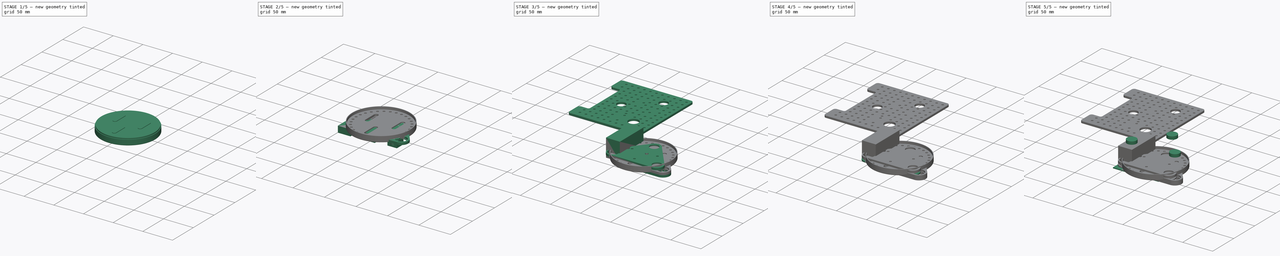
[diagram: build sequence overview — one tinted view per stage of 5, left to right]
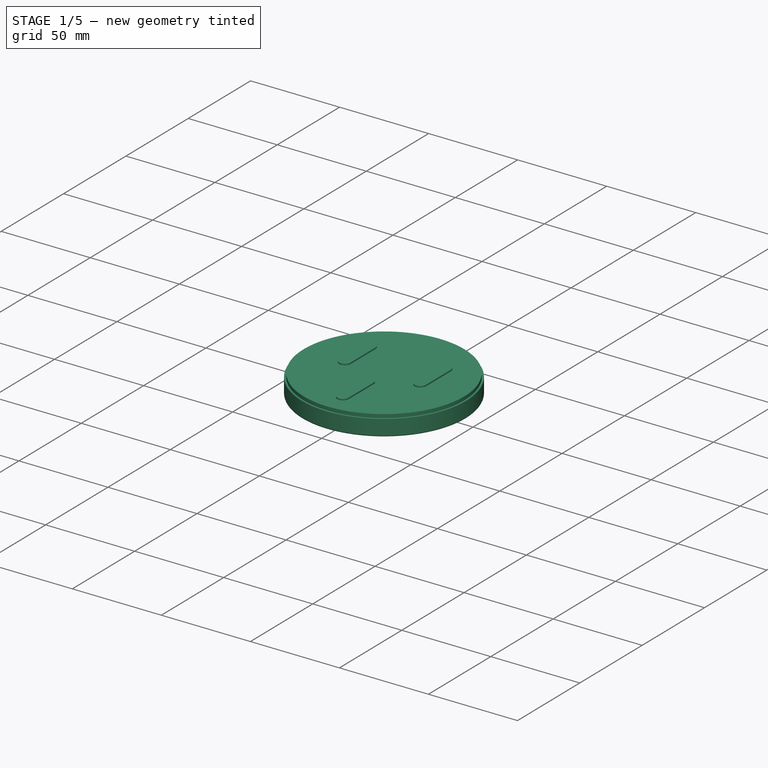
[diagram: stage 1 of 5 — iso view after this stage's code; geometry added in this stage tinted green]
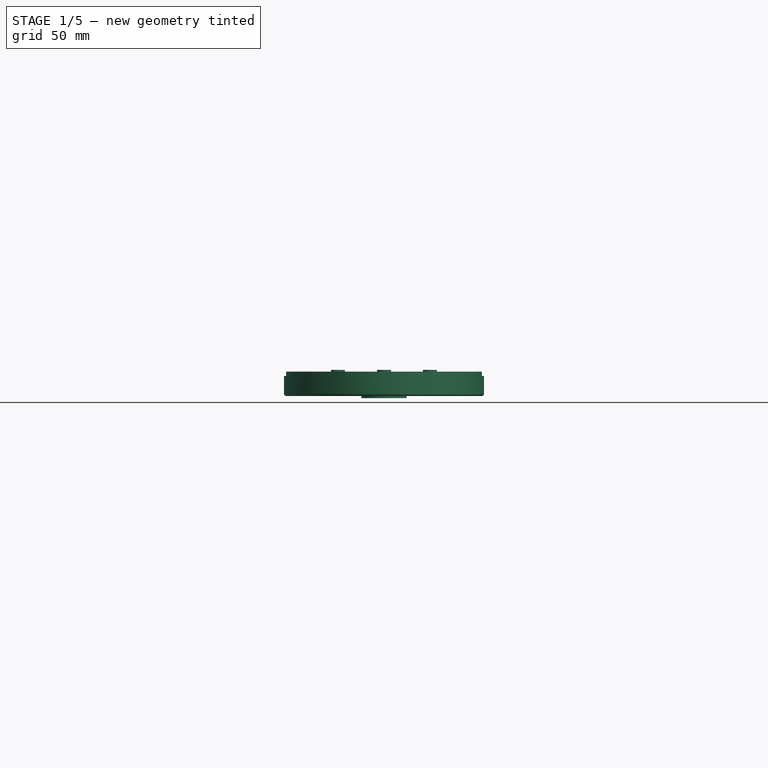
[diagram: stage 1 of 5 — front view after this stage's code; geometry added in this stage tinted green]
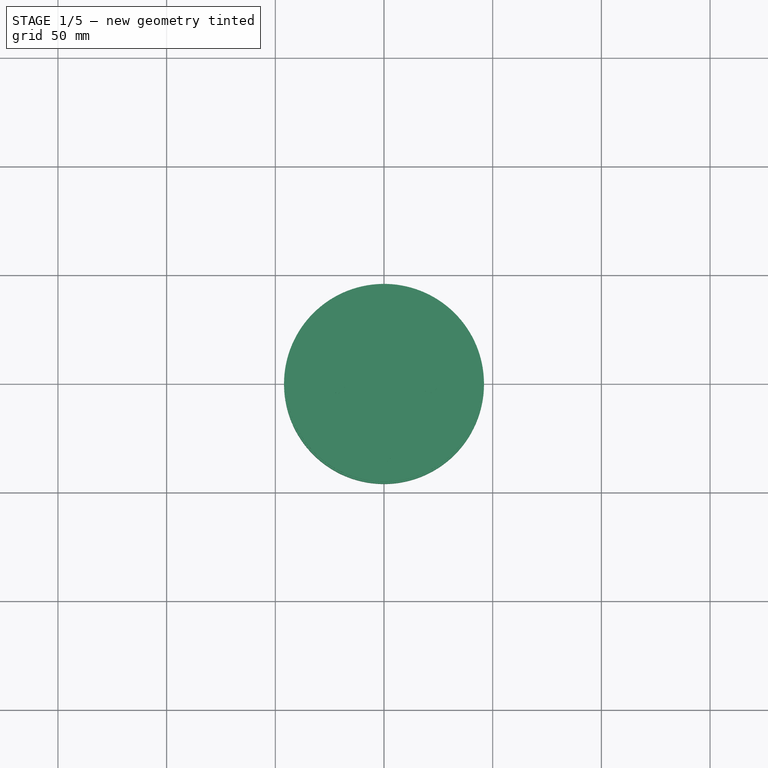
[diagram: stage 1 of 5 — top view after this stage's code; geometry added in this stage tinted green]
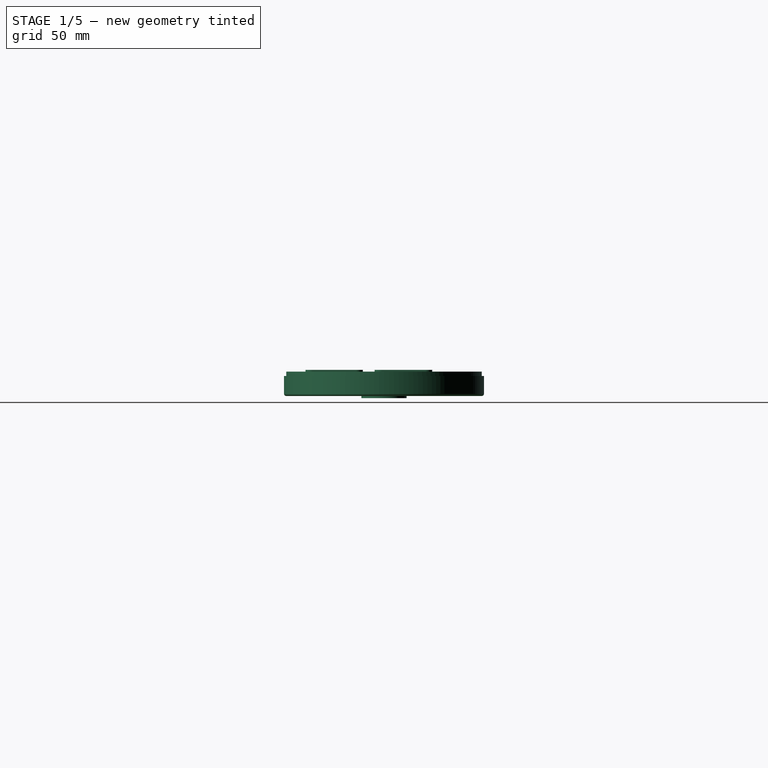
[diagram: stage 1 of 5 — right view after this stage's code; geometry added in this stage tinted green]
FCSTD DOCUMENT  (FreeCAD 0.19R23578 (Git))
Label: orbital_shaker
License: All rights reserved
LicenseURL: http://en.wikipedia.org/wiki/All_rights_reserved
objects: Part::Cylinder×28, PartDesign::Body×20, Sketcher::SketchObject×19, PartDesign::Pad×19, Part::MultiFuse×17, Part::FeaturePython×15, App::Part×14, Part::Box×10, Part::Cut×10, PartDesign::FeatureBase×8, Part::Feature×4, Part::Mirroring×2, Part::Compound×2, PartDesign::ShapeBinder×1, Part::MultiCommon×1, Spreadsheet::Sheet×1, TechDraw::DrawSVGTemplate×1, Part::Offset×1, App::DocumentObjectGroup×1, TechDraw::DrawViewPart×1, +4 more types
note: 177 computed .brp shape members not serialized (recipe doc carries the construction recipe); baked Part::Feature solids carry a one-line shape summary decoded from their .brp

FEATURE [Part::Cylinder] Cylinder002  label="bearing holder wall"
  Angle = 360
  AttacherType = Attacher::AttachEngine3D
  Height = 2.75
  Radius = 10.4
  expr: Height = <<p>>.bearing_h / 2
  expr: Radius = <<p>>.bearing_external_r + <<p>>.wall
FEATURE [Part::Cylinder] Cylinder003  label="bearing holder disk"
  Angle = 360
  AttacherType = Attacher::AttachEngine3D
  Height = 1
  Placement = pos=(0,0,-1) rot=(0,0,1;0rad)
  Radius = 10.4
  expr: .Placement.Base.z = -Height
  expr: Height = <<p>>.bearing_holder_disk_h
  expr: Radius = <<bearing holder wall>>.Radius
FEATURE [Part::MultiFuse] Fusion002  label="bearing holder fusion"
  Shapes = -> [Cylinder002,Cylinder003]
FEATURE [PartDesign::Body] Body020  label="shelf locker body"
  Group = -> [Sketch024,Pad023]
  Origin = -> Origin033
  Tip = -> Pad023
FEATURE [App::Part] Part012  label="shelf locker part"
  Group = -> [Body020]
  Origin = -> Origin032
FEATURE [Part::Cylinder] Cylinder058  label="outer cylinder"
  Angle = 360
  AttacherType = Attacher::AttachEngine3D
  Height = 9.2
  Radius = 46
  expr: Height = 6mm + <<p>>.bolt_head_r
FEATURE [Part::Cylinder] Cylinder059  label="inner cylinder"
  Angle = 360
  AttacherType = Attacher::AttachEngine3D
  Height = 6
  Placement = pos=(0,0,5.2) rot=(0,0,1;0rad)
  Radius = 45
  expr: .Placement.Base.z = <<p>>.wall + <<p>>.bolt_head_r
FEATURE [PartDesign::Body] Body021  label="top bearing plate fusion clone"
  BaseFeature = -> Fusion003
  Group = -> [Clone007]
  Origin = -> Origin035
  Placement = pos=(-10,-8,0) rot=(0,0,1;0rad)
  Tip = -> Clone007
FEATURE [Part::Cylinder] Cylinder060  label="bolt hole"
  Angle = 360
  AttacherType = Attacher::AttachEngine3D
  Height = 10
  Radius = 1.8
  expr: Radius = <<p>>.hole_r
FEATURE [Part::FeaturePython] Point005  # WARN: FeaturePython — macro-defined, semantics opaque (R4)
  Placement = pos=(0,-21,0) rot=(0,0,1;0rad)
  X = 0
  Y = -21
  Z = 0
FEATURE [Part::FeaturePython] Point006  # WARN: FeaturePython — macro-defined, semantics opaque (R4)
  Placement = pos=(-21.2,10.8,0) rot=(0,0,1;0rad)
  X = -21.2
  Y = 10.8
  Z = 0
FEATURE [Part::FeaturePython] Point007  # WARN: FeaturePython — macro-defined, semantics opaque (R4)
  Placement = pos=(21.1,10.9,0) rot=(0,0,1;0rad)
  X = 21.1
  Y = 10.9
  Z = 0
FEATURE [Part::Compound] Compound001  label="top bearing plate hole point compound"
  Links = -> [Point005,Point006,Point007]
FEATURE [Part::FeaturePython] Array061002  label="bolt hole y array"  # Draft array (typed FeaturePython)
  Angle = 360
  ArrayType = 0
  Axis = (0,0,1)
  Base = -> Cylinder060
  Center = (0,0,0)
  Count = 2
  ExpandArray = false
  Fuse = false
  IntervalAxis = (0,0,0)
  IntervalX = (10,0,0)
  IntervalY = (0,20,0)
  IntervalZ = (0,0,100)
  NumberCircles = 3
  NumberPolar = 5
  NumberX = 1
  NumberY = 2
  NumberZ = 1
  PlacementList = 2 placements: [(0,0,0),(0,20,0)]
  RadialDistance = 50
  ScaleList = (2) [(1,1,1),(1,1,1)]
  Symmetry = 1
  TangentialDistance = 25
FEATURE [Part::Box] Box065  label="interhole cube"
  AttacherType = Attacher::AttachEngine3D
  Height = 10
  Length = 3.6
  Placement = pos=(-1.8,0,0) rot=(0,0,1;0rad)
  Width = 20
  expr: Length = <<p>>.hole_r * 2
  expr: .Placement.Base.x = -<<p>>.hole_r
FEATURE [Part::MultiFuse] Fusion016  label="bolt hole fusion"
  Shapes = -> [Box065,Array061002]
FEATURE [Part::FeaturePython] PointArray001  label="top bearing plate bolt hole array"  # Draft array (typed FeaturePython)
  Base = -> Fusion016
  Count = 0
  Placement = pos=(0,-11.9,0) rot=(0,0,1;0rad)
  PointObject = -> Compound001
FEATURE [Part::Fillet] Fillet  label="outer cylinder fillet"
  Base = -> Cylinder058
  Edges = 1 edges r=1: [Edge3]
FEATURE [Part::Cylinder] Cylinder061  label="bolt hole001"
  Angle = 360
  AttacherType = Attacher::AttachEngine3D
  Height = 10
  Radius = 3.2
  expr: Radius = <<p>>.bolt_head_r
FEATURE [Part::FeaturePython] Array061003  label="bolt hole y array001"  # Draft array (typed FeaturePython)
  Angle = 360
  ArrayType = 0
  Axis = (0,0,1)
  Base = -> Cylinder061
  Center = (0,0,0)
  Count = 2
  ExpandArray = false
  Fuse = false
  IntervalAxis = (0,0,0)
  IntervalX = (10,0,0)
  IntervalY = (0,20,0)
  IntervalZ = (0,0,100)
  NumberCircles = 3
  NumberPolar = 5
  NumberX = 1
  NumberY = 2
  NumberZ = 1
  PlacementList = 2 placements: [(0,0,0),(0,20,0)]
  RadialDistance = 50
  ScaleList = (2) [(1,1,1),(1,1,1)]
  Symmetry = 1
  TangentialDistance = 25
FEATURE [Part::Box] Box066  label="interhole cube001"
  AttacherType = Attacher::AttachEngine3D
  Height = 10
  Length = 6.4
  Placement = pos=(-3.2,0,0) rot=(0,0,1;0rad)
  Width = 20
  expr: .Placement.Base.x = -<<p>>.bolt_head_r
  expr: Length = <<p>>.bolt_head_r * 2
FEATURE [Part::MultiFuse] Fusion017  label="bolt head hole fusion"
  Shapes = -> [Box066,Array061003]
FEATURE [Part::FeaturePython] PointArray002  label="top bearing plate bolt head hole array"  # Draft array (typed FeaturePython)
  Base = -> Fusion017
  Count = 0
  Placement = pos=(0,-11.9,2) rot=(0,0,1;0rad)
  PointObject = -> Compound001
  expr: .Placement.Base.z = <<p>>.wall
FEATURE [Part::Cylinder] Cylinder062  label="just cylinder"
  Angle = 360
  AttacherType = Attacher::AttachEngine3D
  Height = 10
  Radius = 1.8
  expr: Radius = <<p>>.hole_r
FEATURE [Part::Part2DObjectPython] Circle  # Draft 2D object (typed FeaturePython)
  Area = 0
  FirstAngle = 0
  LastAngle = 0
  MakeFace = false
  Placement = pos=(0.656034,-0.604697,0) rot=(0,0,1;0rad)
  Radius = 40
FEATURE [Part::Cone] Cone  label="just cone"
  Angle = 360
  AttacherType = Attacher::AttachEngine3D
  Height = 3
  Radius1 = 3.2
  Radius2 = 1.8
  expr: Radius1 = <<p>>.bolt_head_r
  expr: Radius2 = <<p>>.hole_r
FEATURE [Part::MultiFuse] Fusion018  label="just hole cone"
  Shapes = -> [Cylinder062,Cone]
FEATURE [Part::FeaturePython] PathArray  # WARN: FeaturePython — macro-defined, semantics opaque (R4)
  Align = false
  AlignMode = 0
  Base = -> Fusion018
  Count = 30
  ExtraTranslation = (0,0,0)
  ForceVertical = false
  PathObject = -> Circle
  TangentVector = (1,0,0)
  VerticalVector = (0,0,1)
FEATURE [Part::MultiFuse] Fusion015  label="cylinder bed extract"
  Shapes = -> [PointArray001,Cylinder059,PointArray002,PathArray]
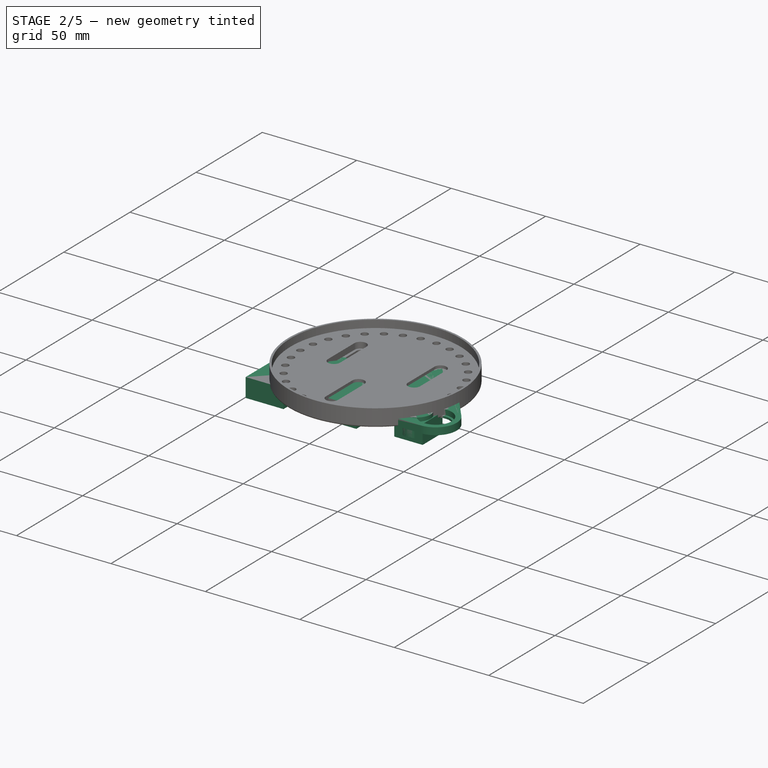
[diagram: stage 2 of 5 — iso view after this stage's code; geometry added in this stage tinted green]
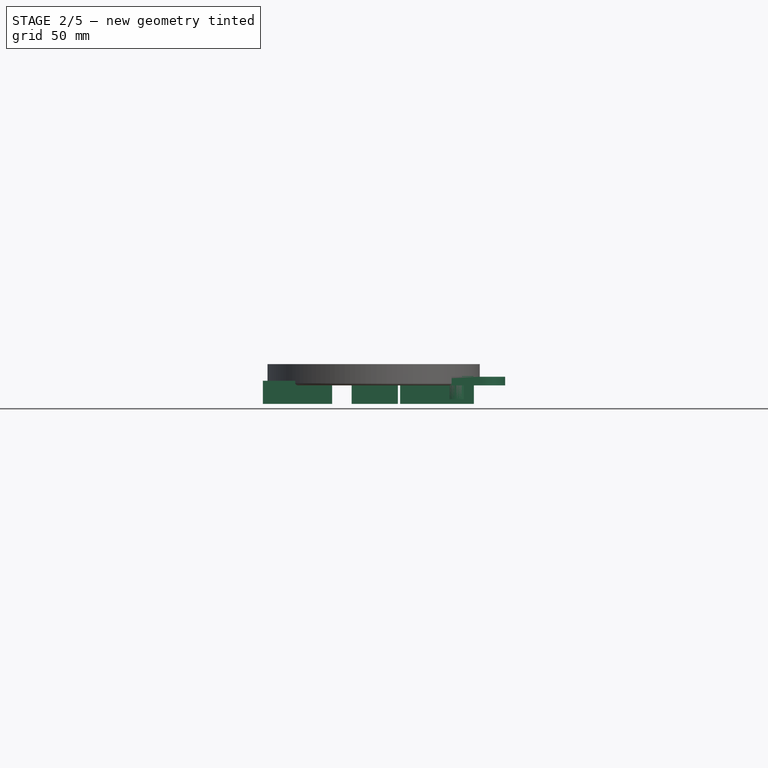
[diagram: stage 2 of 5 — front view after this stage's code; geometry added in this stage tinted green]
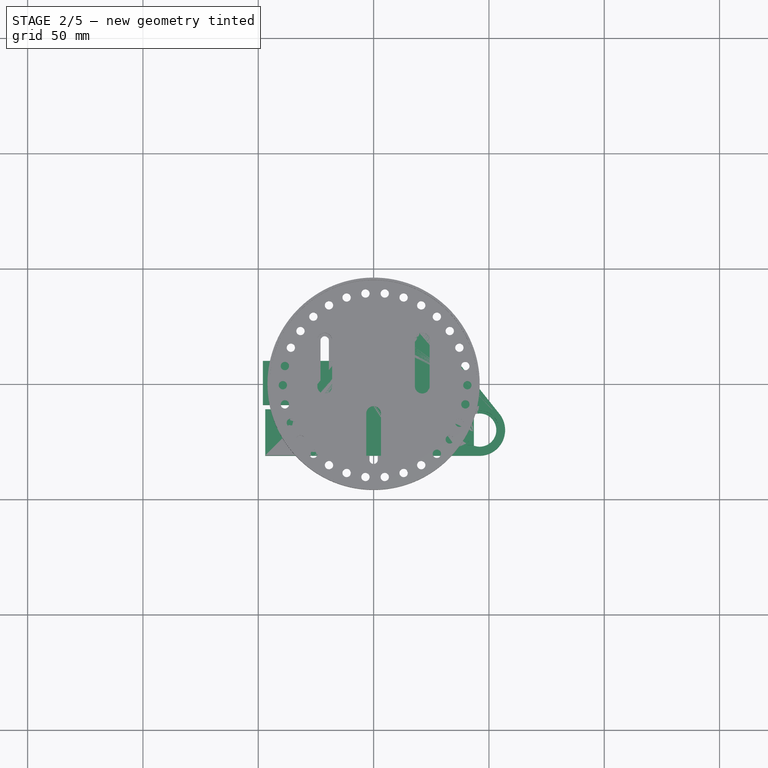
[diagram: stage 2 of 5 — top view after this stage's code; geometry added in this stage tinted green]
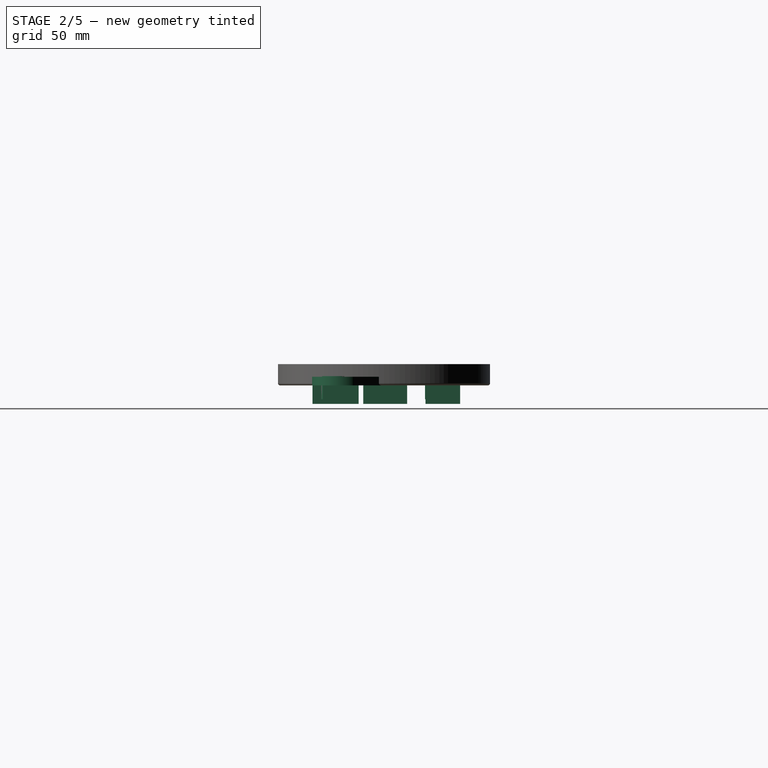
[diagram: stage 2 of 5 — right view after this stage's code; geometry added in this stage tinted green]
FEATURE [Spreadsheet::Sheet] Spreadsheet  label="p"
  cells = A1=bearing_internal_r; B1(bearing_internal_r)==2.5mm; A2=bearing_external_r; B2(bearing_external_r)==8.4mm; A3=bearing_h; B3(bearing_h)==5.5mm; A4=bearing_external_wall; B4(bearing_external_wall)==1.2mm; A5=bearing_washer_r; B5(bearing_washer_r)==4.5mm; A6=hole_r; B6(hole_r)==1.8mm; A7=bolt_head_r; B7(bolt_head_r)==3.2mm; A8=wall; B8(wall)==2mm; A9=bearing_holder_disk_h; B9(bearing_holder_disk_h)==1mm; A10=top_bearing_plate_h; B10(top_bearing_plate_h)==max(inserter_h; bearing_h + bearing_holder_disk_h); A11=insert_hole_r; B11(insert_hole_r)==2.2mm; A12=inserter_h; B12(inserter_h)==6mm; A13=washer_h; B13(washer_h)==2mm; A14=bearing_cover_plate_h; B14(bearing_cover_plate_h)==2mm; A15=plate_hole_dist; B15(plate_hole_dist)==10mm; A16=plate_x; B16(plate_x)==120mm; A17=plate_y; B17(plate_y)==110mm
FEATURE [Sketcher::SketchObject] Sketch013  label="top bearing plate sketch"
  Support = -> [XY_Plane011,Origin011]
  expr: Constraints[13] = <<p>>.insert_hole_r
  expr: Constraints[10] = <<p>>.bearing_external_r + <<p>>.bearing_external_wall
  sketch-geometry (12):
    g0: LineSegment StartX=1.6466 StartY=32.0014 StartZ=0 EndX=-34.644 EndY=-12.8589 EndZ=0
    g1: LineSegment StartX=-25.9102 StartY=-31.1581 StartZ=0 EndX=45.8614 EndY=-31.1581 EndZ=0
    g2: LineSegment StartX=54.581 StartY=-13.0276 StartZ=0 EndX=18.6353 EndY=31.9509 EndZ=0
    g3: ArcOfCircle CenterX=10.1206 CenterY=25.1462 CenterZ=0 NormalX=0 NormalY=0 NormalZ=1 AngleXU=0 Radius=10.8997 StartAngle=0.674238 EndAngle=2.46141
    g4: ArcOfCircle CenterX=-25.9102 CenterY=-19.9243 CenterZ=0 NormalX=0 NormalY=0 NormalZ=1 AngleXU=0 Radius=11.2338 StartAngle=2.46141 EndAngle=4.71239
    g5: ArcOfCircle CenterX=45.8614 CenterY=-19.9961 CenterZ=0 NormalX=0 NormalY=0 NormalZ=1 AngleXU=0 Radius=11.162 StartAngle=4.71239 EndAngle=6.95742
    g6: Circle CenterX=-25.9102 CenterY=-19.9243 CenterZ=0 NormalX=0 NormalY=0 NormalZ=1 AngleXU=0 Radius=9.6
    g7: Circle CenterX=10.1206 CenterY=25.1462 CenterZ=0 NormalX=0 NormalY=0 NormalZ=1 AngleXU=0 Radius=9.6
    g8: Circle CenterX=45.8614 CenterY=-19.9961 CenterZ=0 NormalX=0 NormalY=0 NormalZ=1 AngleXU=0 Radius=9.6
    g9: Circle CenterX=-11.2191 CenterY=6.83481 CenterZ=0 NormalX=0 NormalY=0 NormalZ=1 AngleXU=0 Radius=2.2
    g10: Circle CenterX=10.0167 CenterY=-25.022 CenterZ=0 NormalX=0 NormalY=0 NormalZ=1 AngleXU=0 Radius=2.2
    g11: Circle CenterX=31.1293 CenterY=6.87918 CenterZ=0 NormalX=0 NormalY=0 NormalZ=1 AngleXU=0 Radius=2.2
  constraints (16):
    c: Tangent(g4,g1) = -1.5708
    c: Tangent(g1,g5) = -1.5708
    c: Tangent(g2,g5) = -1.5708
    c: Tangent(g3,g2) = -1.5708
    c: Tangent(g3,g0) = -1.5708
    c: Tangent(g4,g0) = -1.5708
    c: Horizontal(g1)
    c: Coincident(g6,g4)
    c: Coincident(g7,g3)
    c: Coincident(g8,g5)
    c: Radius(g6) = 9.6
    c: Equal(g6,g7)
    c: Equal(g7,g8)
    c: Radius(g9) = 2.2
    c: Equal(g9,g10)
    c: Equal(g10,g11)
FEATURE [Part::Cylinder] Cylinder001  label="bearing holder extract"
  Angle = 360
  AttacherType = Attacher::AttachEngine3D
  Height = 5.5
  Radius = 8.4
  expr: Height = <<p>>.bearing_h
  expr: Radius = <<p>>.bearing_external_r
FEATURE [Part::Cylinder] Cylinder004  label="bearing holder central hole"
  Angle = 360
  AttacherType = Attacher::AttachEngine3D
  Height = 6.5
  Placement = pos=(0,0,-1) rot=(0,0,1;0rad)
  Radius = 7.2
  expr: .Placement.Rotation.Axis.z = <<p>>.bearing_holder_disk_h
  expr: .Placement.Base.z = -<<p>>.bearing_holder_disk_h
  expr: Height = <<p>>.bearing_h + <<p>>.bearing_holder_disk_h
  expr: Radius = <<p>>.bearing_external_r - <<p>>.bearing_external_wall
FEATURE [Part::MultiFuse] Fusion001  label="bearing holder extract fusion"
  Shapes = -> [Cylinder004,Cylinder001]
FEATURE [Part::Cut] Cut003  label="bearing holder body"
  Base = -> Fusion002
  Placement = pos=(0,0,1) rot=(0,0,1;0rad)
  Tool = -> Fusion001
  expr: .Placement.Base.z = <<p>>.bearing_holder_disk_h
FEATURE [App::Part] Part003  label="bearing holder part"
  Group = -> [Cut003]
  Origin = -> Origin012
FEATURE [PartDesign::Pad] Pad011
  Direction = (1,1,1)
  Length = 3.75
  Length2 = 100
  Profile = -> Sketch013
  Type = 0
  expr: Length = <<p>>.bearing_h / 2 + <<p>>.bearing_holder_disk_h
FEATURE [PartDesign::Body] Body008  label="top bearing plate body"
  Group = -> [Sketch013,Pad011]
  Origin = -> Origin012
  Tip = -> Pad011
FEATURE [PartDesign::FeatureBase] Clone002
  BaseFeature = -> Cut003
FEATURE [PartDesign::Body] Body009  label="bearing holder body clone"
  BaseFeature = -> Cut003
  Group = -> [Clone002]
  Origin = -> Origin013
  Placement = pos=(10,25,1) rot=(0,0,1;0rad)
  Tip = -> Clone002
  expr: .Placement.Base.z = <<p>>.bearing_holder_disk_h
FEATURE [PartDesign::FeatureBase] Clone003
  BaseFeature = -> Cut003
FEATURE [PartDesign::Body] Body010  label="bearing holder body clone001"
  BaseFeature = -> Cut003
  Group = -> [Clone003]
  Origin = -> Origin014
  Placement = pos=(-26,-20,1) rot=(0,0,1;0rad)
  Tip = -> Clone003
  expr: .Placement.Base.z = <<p>>.bearing_holder_disk_h
FEATURE [PartDesign::FeatureBase] Clone004
  BaseFeature = -> Cut003
FEATURE [PartDesign::Body] Body011  label="bearing holder body clone002"
  BaseFeature = -> Cut003
  Group = -> [Clone004]
  Origin = -> Origin015
  Placement = pos=(46,-20,1) rot=(0,0,1;0rad)
  Tip = -> Clone004
  expr: .Placement.Base.z = <<p>>.bearing_holder_disk_h
FEATURE [Part::MultiFuse] Fusion003  label="top bearing plate fusion"
  Shapes = -> [Body008,Body009,Body010,Body011]
FEATURE [Part::Box] Box059  label="no hole space cube"
  AttacherType = Attacher::AttachEngine3D
  Height = 10
  Length = 20
  Placement = pos=(-47,-31,-8) rot=(0,0,1;0rad)
  Width = 20
FEATURE [Part::Box] Box060  label="no hole space cube001"
  AttacherType = Attacher::AttachEngine3D
  Height = 10
  Length = 30
  Placement = pos=(-48,-9,-8) rot=(0,0,1;0rad)
  Width = 19
FEATURE [Part::Box] Box061  label="no hole space cube002"
  AttacherType = Attacher::AttachEngine3D
  Height = 10
  Length = 20
  Placement = pos=(11.5,-0.5,-8) rot=(0,0,1;0rad)
  Width = 10
FEATURE [Part::Box] Box062  label="no hole space cube003"
  AttacherType = Attacher::AttachEngine3D
  Height = 10
  Length = 20
  Placement = pos=(-9.5,-29.5,-8) rot=(0,0,1;0rad)
  Width = 11
FEATURE [Part::Cylinder] Cylinder056  label="shelf bearing hole"
  Angle = 360
  AttacherType = Attacher::AttachEngine3D
  Height = 10
  Placement = pos=(0,25,-6) rot=(0,0,1;0rad)
  Radius = 7.2
  expr: Radius = <<p>>.bearing_external_r - <<p>>.bearing_external_wall
FEATURE [Part::Cylinder] Cylinder057  label="shelf bearing hole001"
  Angle = 360
  AttacherType = Attacher::AttachEngine3D
  Height = 10
  Placement = pos=(36,-20,-6) rot=(0,0,1;0rad)
  Radius = 7.2
  expr: Radius = <<p>>.bearing_external_r - <<p>>.bearing_external_wall
FEATURE [Part::Box] Box063  label="no hole space cube004"
  AttacherType = Attacher::AttachEngine3D
  Height = 10
  Length = 15
  Placement = pos=(-7,18,-8) rot=(0,0,1;0rad)
  Width = 15
FEATURE [Part::Box] Box064  label="no hole space cube005"
  AttacherType = Attacher::AttachEngine3D
  Height = 10
  Length = 15
  Placement = pos=(28.5,-26.5,-8) rot=(0,0,1;0rad)
  Width = 15
FEATURE [Part::MultiFuse] Fusion014  label="no holes fusion"
  Shapes = -> [Box062,Box061,Box060,Box059,Box064,Box063]
FEATURE [App::DocumentObjectGroup] LaserCutterExportObjects
  Group = -> [shelf_cut_offset]
FEATURE [TechDraw::DrawViewPart] shelf_cut_contour
  CoarseView = true
  Direction = (0,0,1)
  Focus = 100
  HardHidden = false
  IsoCount = 0
  IsoHidden = false
  IsoVisible = false
  LockPosition = false
  Perspective = false
  Rotation = 0
  ScaleType = 2
  SeamHidden = false
  SeamVisible = true
  SmoothHidden = false
  SmoothVisible = true
  Source = -> [shelf_cut_offset]
  X = 60.3
  XDirection = (1,0,0)
  Y = 63.6
FEATURE [TechDraw::DrawPage] LaserCutterExport
  KeepUpdated = true
  NextBalloonIndex = 1
  ProjectionType = 0
  Template = -> Template
  Views = -> [shelf_cut_contour]
FEATURE [Part::Feature] Array061001  label="internal insert disk array"
  Placement = pos=(12,-10.5,-8) rot=(0,0,1;1.5708rad)
  shape: bbox 10 x 125 x 9.6 mm, 60 faces, 12 solids (baked)
FEATURE [Sketcher::SketchObject] Sketch024
  MapMode = 5
  Support = -> [XY_Plane033]
  sketch-geometry (7):
    g0: LineSegment StartX=3 StartY=4.5 StartZ=0 EndX=-3 EndY=4.5 EndZ=0
    g1: LineSegment StartX=-3 StartY=-4.5 StartZ=0 EndX=3 EndY=-4.5 EndZ=0
    g2: ArcOfCircle CenterX=15.2761 CenterY=-17.8384 CenterZ=0 NormalX=0 NormalY=0 NormalZ=1 AngleXU=0 Radius=18.1277 StartAngle=1.86699 EndAngle=2.31475
    g3: ArcOfCircle CenterX=7.05759 CenterY=2.1e-15 CenterZ=0 NormalX=0 NormalY=0 NormalZ=1 AngleXU=0 Radius=11.0184 StartAngle=2.72088 EndAngle=3.5623
    g4: Circle CenterX=0 CenterY=0 CenterZ=0 NormalX=0 NormalY=0 NormalZ=1 AngleXU=0 Radius=1.8
    g5: LineSegment StartX=9.98496 StartY=-0.5 StartZ=0 EndX=9.98496 EndY=0.5 EndZ=0
    g6: ArcOfCircle CenterX=15.2761 CenterY=17.8384 CenterZ=0 NormalX=0 NormalY=0 NormalZ=1 AngleXU=0 Radius=18.1277 StartAngle=3.96844 EndAngle=4.41619
  constraints (18):
    c: Horizontal(g0)
    c: Horizontal(g1)
    c: Symmetric(g0,g1,g-1)
    c: Equal(g1,g0)
    c: Coincident(g2,g1)
    c: Coincident(g3,g0)
    c: Coincident(g3,g1)
    c: Coincident(g4,g-1)
    c: Radius(g4) = 1.8
    c: DistanceY(g1,g0) = 9
    c: DistanceX(g1,g1) = 6
    c: DistanceX(g1,g-1) = 3
    c: DistanceY(g2,g-1) = 0.5
    c: Coincident(g5,g2)
    c: Coincident(g6,g0)
    c: Coincident(g6,g5)
    c: Symmetric(g2,g5,g-1)
    c: Equal(g6,g2)
FEATURE [Part::Feature] Cut008001  label="shelf cut001"
  Placement = pos=(-56,34,0) rot=(0,0,1;0rad)
  shape: bbox 127 x 120 x 3 mm, 134 faces (baked)
FEATURE [PartDesign::Pad] Pad023
  Direction = (1,1,1)
  Length = 4
  Length2 = 100
  Profile = -> Sketch024
  Type = 0
FEATURE [PartDesign::FeatureBase] Clone007
  BaseFeature = -> Fusion003
FEATURE [Part::Cut] Cut008002  label="cylinder bed cut"
  Base = -> Fillet
  Tool = -> Fusion015
FEATURE [App::Part] Part013  label="cylinder bed 90mm part"
  Group = -> [Cut008002,PointArray001,Fusion015,Compound001,Point006,Point007,Cylinder059,Cylinder060,Cylinder058,Point005,Array061002]
  Origin = -> Origin034
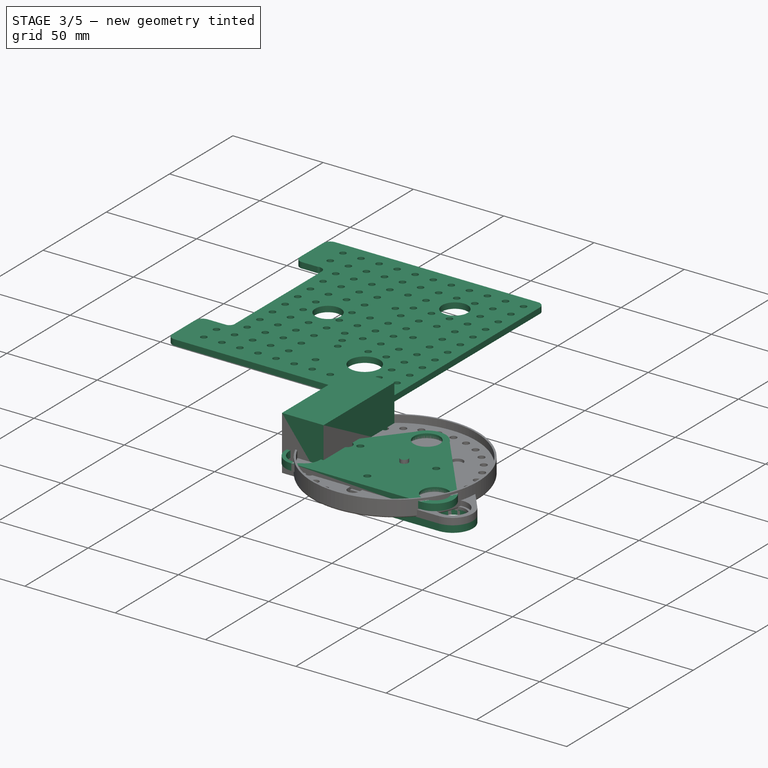
[diagram: stage 3 of 5 — iso view after this stage's code; geometry added in this stage tinted green]
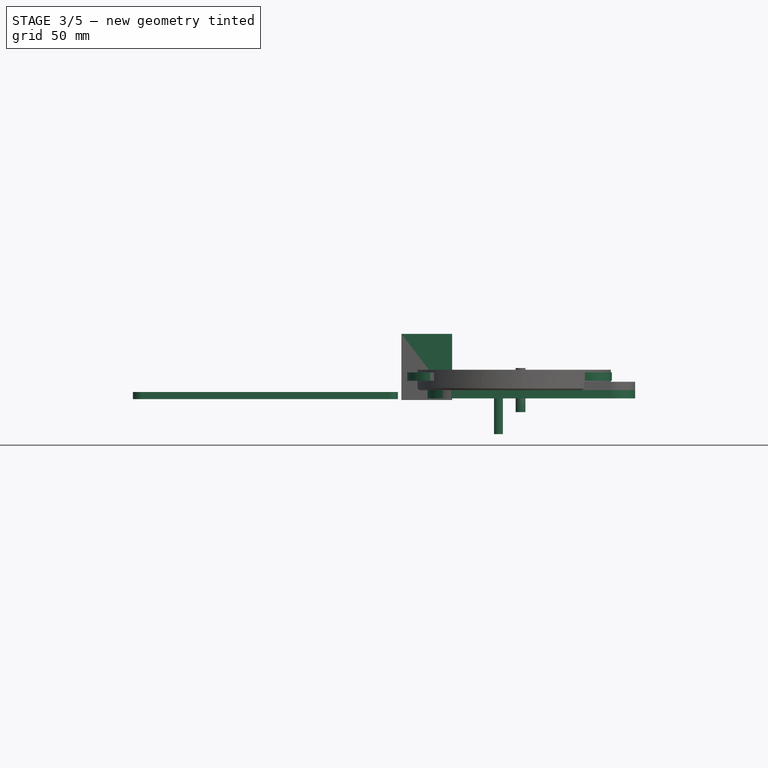
[diagram: stage 3 of 5 — front view after this stage's code; geometry added in this stage tinted green]
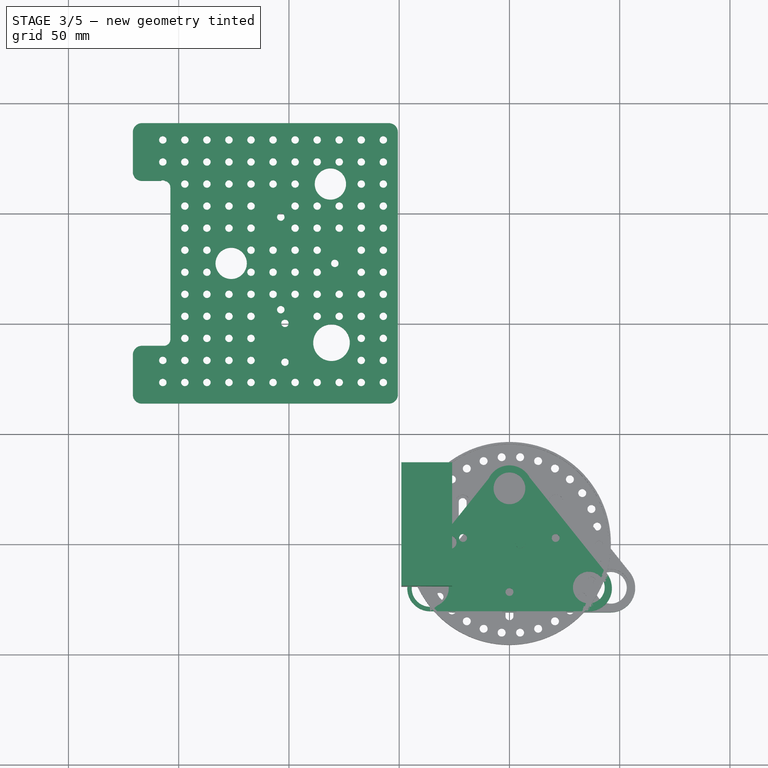
[diagram: stage 3 of 5 — top view after this stage's code; geometry added in this stage tinted green]
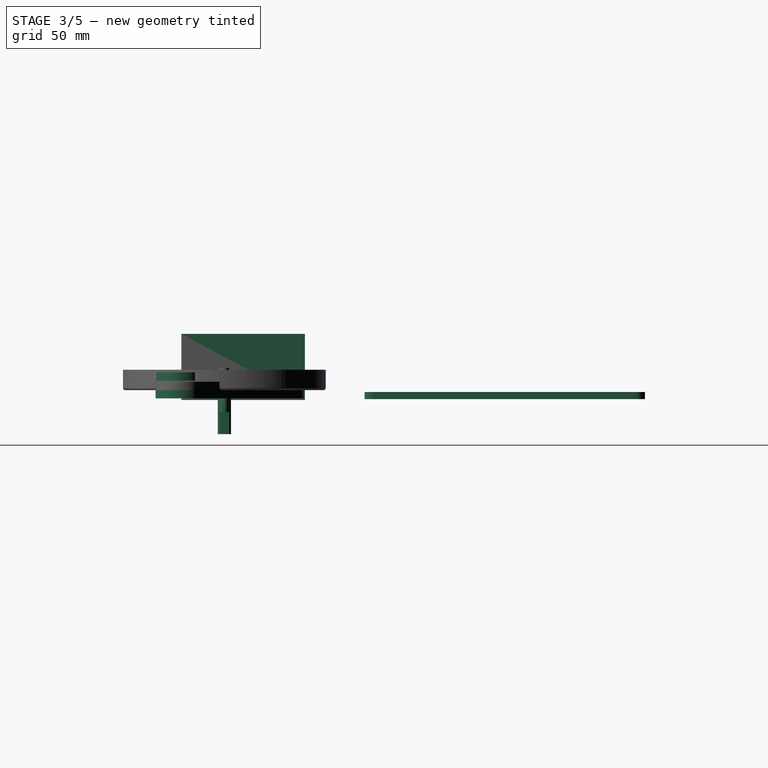
[diagram: stage 3 of 5 — right view after this stage's code; geometry added in this stage tinted green]
FEATURE [App::Part] Part002  label="top bearing plate part"
  Group = -> [Body008,Fusion003]
  Origin = -> Origin010
  Placement = pos=(0,0,24) rot=(0,0,1;0rad)
FEATURE [Sketcher::SketchObject] Sketch
  MapMode = 5
  Support = -> [XY_Plane016]
  expr: Constraints[23] = <<p>>.hole_r
  expr: Constraints[10] = <<p>>.bearing_external_r
  expr: Constraints[16] = <<p>>.bearing_external_r + <<p>>.wall
  expr: Constraints[15] = <<p>>.bearing_external_r
  sketch-geometry (13):
    g0: LineSegment StartX=-44.056 StartY=-13.8462 StartZ=0 EndX=-8.05596 EndY=31.1538 EndZ=0
    g1: LineSegment StartX=8.18611 StartY=31.1538 StartZ=0 EndX=44.1861 EndY=-13.8462 EndZ=0
    g2: LineSegment StartX=36.0651 StartY=-30.7431 StartZ=0 EndX=-35.9349 EndY=-30.7431 EndZ=0
    g3: ArcOfCircle CenterX=-35.9349 CenterY=-20.3431 CenterZ=0 NormalX=0 NormalY=0 NormalZ=1 AngleXU=0 Radius=10.4 StartAngle=2.46685 EndAngle=4.71239
    g4: ArcOfCircle CenterX=0.0650753 CenterY=24.6569 CenterZ=0 NormalX=0 NormalY=0 NormalZ=1 AngleXU=0 Radius=10.4 StartAngle=0.674741 EndAngle=2.46685
    g5: ArcOfCircle CenterX=36.0651 CenterY=-20.3431 CenterZ=0 NormalX=0 NormalY=0 NormalZ=1 AngleXU=0 Radius=10.4 StartAngle=4.71239 EndAngle=6.95793
    g6: Circle CenterX=-35.9349 CenterY=-20.3431 CenterZ=0 NormalX=0 NormalY=0 NormalZ=1 AngleXU=0 Radius=8.4
    g7: Circle CenterX=0.0650753 CenterY=24.6569 CenterZ=0 NormalX=0 NormalY=0 NormalZ=1 AngleXU=0 Radius=8.4
    g8: Circle CenterX=36.0651 CenterY=-20.3431 CenterZ=0 NormalX=0 NormalY=0 NormalZ=1 AngleXU=0 Radius=8.4
    g9: Circle CenterX=-21.0312 CenterY=2.5 CenterZ=0 NormalX=0 NormalY=0 NormalZ=1 AngleXU=0 Radius=1.8
    g10: Circle CenterX=20.9613 CenterY=2.5 CenterZ=0 NormalX=0 NormalY=0 NormalZ=1 AngleXU=0 Radius=1.8
    g11: Circle CenterX=0 CenterY=-22 CenterZ=0 NormalX=0 NormalY=0 NormalZ=1 AngleXU=0 Radius=1.8
    g12: Circle CenterX=-27 CenterY=0.5 CenterZ=0 NormalX=0 NormalY=0 NormalZ=1 AngleXU=0 Radius=3
  constraints (29):
    c: Horizontal(g2)
    c: Tangent(g3,g2) = 1.5708
    c: Tangent(g5,g2) = 1.5708
    c: Tangent(g5,g1) = 1.5708
    c: Tangent(g4,g1) = 1.5708
    c: Tangent(g4,g0) = 1.5708
    c: Coincident(g6,g3)
    c: Coincident(g7,g4)
    c: Coincident(g8,g5)
    c: Equal(g8,g7)
    c: Radius(g6) = 8.4
    c: DistanceY(g5,g4) = 45
    c: DistanceX(g4,g5) = 36
    c: DistanceX(g3,g5) = 72
    c: DistanceY(g3,g4) = 45
    c: Radius(g8) = 8.4
    c: Radius(g4) = 10.4
    c: Equal(g3,g4)
    c: Tangent(g0,g3) = 1.5708
    c: PointOnObject(g11,g-2)
    c: DistanceY(g11,g-1) = 22
    c: DistanceY(g-1,g9) = 2.5
    c: DistanceY(g-1,g10) = 2.5
    c: Radius(g11) = 1.8
    c: Equal(g9,g10)
    c: Equal(g10,g11)
    c: Radius(g12) = 3
    c: DistanceY(g-1,g12) = 0.5
    c: DistanceX(g12,g-1) = 27
FEATURE [PartDesign::Pad] Pad012
  Direction = (1,1,1)
  Length = 3.75
  Length2 = 100
  Profile = -> Sketch
  Type = 0
  expr: Length = <<p>>.bearing_h / 2 + <<p>>.bearing_holder_disk_h
FEATURE [PartDesign::Body] Body  label="base bearing body"
  Group = -> [Sketch,Pad012]
  Origin = -> Origin016
  Tip = -> Pad012
FEATURE [PartDesign::FeatureBase] Clone005
  BaseFeature = -> Cut003
  Placement = pos=(0,0,1) rot=(0,0,1;0rad)
FEATURE [PartDesign::Body] Body012  label="bearing holder body clone003"
  BaseFeature = -> Cut003
  Group = -> [Clone005]
  Origin = -> Origin017
  Placement = pos=(0,25,0) rot=(0,0,1;0rad)
  Tip = -> Clone005
FEATURE [PartDesign::FeatureBase] Clone006
  BaseFeature = -> Cut003
  Placement = pos=(0,0,1) rot=(0,0,1;0rad)
FEATURE [PartDesign::Body] Body013  label="bearing holder body clone004"
  BaseFeature = -> Cut003
  Group = -> [Clone006]
  Origin = -> Origin018
  Placement = pos=(36,-20,0) rot=(1,0,0;0rad)
  Tip = -> Clone006
FEATURE [Part::MultiFuse] Fusion004  label="base bearing fusion"
  Shapes = -> [Body013,Body012,Body]
FEATURE [PartDesign::Pad] Pad020
  Direction = (1,1,1)
  Length = 20
  Length2 = 100
  Profile = -> Sketch022
  Reversed = true
  Type = 0
FEATURE [PartDesign::Body] Body017  label="motor linkage body001"
  Group = -> [Sketch017,Sketch018,Sketch020,Sketch021,Pad016,Pad018,Pad019,Pad021]
  Origin = -> Origin026
  Tip = -> Pad021
FEATURE [Sketcher::SketchObject] Sketch023
  MapMode = 5
  Support = -> [XY_Plane028]
  expr: Constraints[1] = <<p>>.insert_hole_r
  sketch-geometry (1):
    g0: Circle CenterX=5.02065 CenterY=0 CenterZ=0 NormalX=0 NormalY=0 NormalZ=1 AngleXU=0 Radius=2.2
  constraints (2):
    c: PointOnObject(g0,g-1)
    c: Radius(g0) = 2.2
FEATURE [PartDesign::Pad] Pad022
  Direction = (1,1,1)
  Length = 20
  Length2 = 100
  Midplane = true
  Profile = -> Sketch023
  Type = 0
FEATURE [App::Part] Part008  label="motor simple linkage part"
  Group = -> [Cut006]
  Origin = -> Origin025
FEATURE [Part::Cylinder] Cylinder016
  Angle = 360
  AttacherType = Attacher::AttachEngine3D
  Height = 5
  Placement = pos=(5,0,-1) rot=(0,0,1;0rad)
  Radius = 2.3
  expr: Height = <<p>>.bearing_h - 0.5mm
  expr: Radius = <<p>>.bearing_internal_r - 0.2mm
FEATURE [Part::Cylinder] Cylinder017
  Angle = 360
  AttacherType = Attacher::AttachEngine3D
  Height = 5
  Placement = pos=(5,0,-1) rot=(0,0,1;0rad)
  Radius = 1.8
  expr: Height = <<p>>.bearing_h - 0.5mm
  expr: Radius = <<p>>.hole_r
FEATURE [Part::Cut] Cut007
  Base = -> Cylinder016
  Tool = -> Cylinder017
FEATURE [App::Part] Part009  label="bearing insert m3 part"
  Group = -> [Cut007]
  Origin = -> Origin029
FEATURE [Part::Mirroring] Part__Mirroring  label="base bearing fusion (Mirror #1)"
  Base = (0,0,0)
  Normal = (0,0,1)
  Placement = pos=(0,0,8) rot=(0,0,1;0rad)
  Source = -> Fusion004
FEATURE [App::Part] Part010  label="base bearing cover part"
  Group = -> [Part__Mirroring]
  Origin = -> Origin030
FEATURE [Part::Mirroring] Part__Mirroring001  label="top bearing plate fusion (Mirror #2)"
  Base = (0,0,0)
  Normal = (0,0,1)
  Source = -> Fusion003
FEATURE [App::Part] Part011  label="top bearing cover plate part"
  Group = -> [Part__Mirroring001]
  Origin = -> Origin031
  Placement = pos=(0,0,32) rot=(0,0,1;0rad)
FEATURE [Part::Feature] Fillet025001  label="shelf no holes"
  Placement = pos=(-63.5,69.5,-4) rot=(0,0,-1;1.5708rad)
  shape: bbox 127 x 120 x 3 mm, 18 faces (baked)
FEATURE [Part::Box] Box058  label="motor mockup"
  AttacherType = Attacher::AttachEngine3D
  Height = 30
  Length = 23
  Placement = pos=(-49,-19.5,-4.5) rot=(0,0,1;0rad)
  Width = 56
FEATURE [Part::Cylinder] Cylinder053  label="motor shaft hole"
  Angle = 360
  AttacherType = Attacher::AttachEngine3D
  Height = 10
  Placement = pos=(-36,-20.5,-6) rot=(0,0,1;0rad)
  Radius = 8.4
  expr: Radius = <<p>>.bearing_external_r
FEATURE [Part::Cylinder] Cylinder054  label="shelf bolt hole"
  Angle = 360
  AttacherType = Attacher::AttachEngine3D
  Height = 10
  Placement = pos=(-44.5,0,0) rot=(0,0,1;0rad)
  Radius = 1.8
FEATURE [Part::FeaturePython] Point  # WARN: FeaturePython — macro-defined, semantics opaque (R4)
  Placement = pos=(-44.8,0.6,0) rot=(0,0,1;0rad)
  X = -44.8
  Y = 0.6
  Z = 0
FEATURE [Part::FeaturePython] Point001  # WARN: FeaturePython — macro-defined, semantics opaque (R4)
  Placement = pos=(-27.2023,0.6,0) rot=(0,0,1;0rad)
  X = -27.2023
  Y = 0.6
  Z = 0
FEATURE [Part::FeaturePython] Point002  # WARN: FeaturePython — macro-defined, semantics opaque (R4)
  Placement = pos=(-21,2.5,0) rot=(0,0,1;0rad)
  X = -21
  Y = 2.5
  Z = 0
FEATURE [Part::FeaturePython] Point003  # WARN: FeaturePython — macro-defined, semantics opaque (R4)
  Placement = pos=(21,2.50048,0) rot=(0,0,1;0rad)
  X = 21
  Y = 2.50048
  Z = 0
FEATURE [Part::FeaturePython] Point004  # WARN: FeaturePython — macro-defined, semantics opaque (R4)
  Placement = pos=(0,-22,0) rot=(0,0,1;0rad)
  X = 0
  Y = -22
  Z = 0
FEATURE [Part::Compound] Compound  label="bolt point compound"
  Links = -> [Point,Point001,Point002,Point003,Point004]
FEATURE [Part::FeaturePython] PointArray  label="bolt hole point array"  # Draft array (typed FeaturePython)
  Base = -> Cylinder054
  Count = 0
  Placement = pos=(0,0,-9) rot=(0,0,1;0rad)
  PointObject = -> Compound
FEATURE [Part::Cylinder] Cylinder055  label="the hole"
  Angle = 360
  AttacherType = Attacher::AttachEngine3D
  Height = 10
  Radius = 1.8
  expr: Radius = <<p>>.hole_r
FEATURE [Part::FeaturePython] Array  label="shelf bolt hole array"  # Draft array (typed FeaturePython)
  Angle = 360
  ArrayType = 0
  Axis = (0,0,1)
  Base = -> Cylinder055
  Center = (0,0,0)
  Fuse = false
  IntervalAxis = (0,0,0)
  IntervalX = (10,0,0)
  IntervalY = (0,10,0)
  IntervalZ = (0,0,1)
  NumberPolar = 1
  NumberX = 12
  NumberY = 11
  NumberZ = 1
  Placement = pos=(-54,-44,-8) rot=(0,0,1;0rad)
  expr: NumberX = floor(<<p>>.plate_x / <<p>>.plate_hole_dist)
  expr: NumberY = floor(<<p>>.plate_y / <<p>>.plate_hole_dist)
  expr: .IntervalX.x = <<p>>.plate_hole_dist
FEATURE [Part::Cut] Cut009  label="holes cut"
  Base = -> Array
  Tool = -> Fusion014
FEATURE [Part::MultiFuse] Fusion013  label="shelf hole fusion"
  Shapes = -> [Cylinder053,PointArray,Cut009,Cylinder056,Cylinder057]
FEATURE [Part::Cut] Cut008  label="shelf cut"
  Base = -> Fillet025001
  Tool = -> Fusion013
FEATURE [TechDraw::DrawSVGTemplate] Template
  Height = 127.4
  Orientation = 0
  Width = 120.6
FEATURE [Part::Offset] shelf_cut_offset
  Fill = false
  Intersection = false
  Join = 2
  Mode = 0
  Placement = pos=(-101.2,127.2,0) rot=(0,0,1;1.5708rad)
  SelfIntersection = false
  Source = -> Cut008
  Value = 0.1
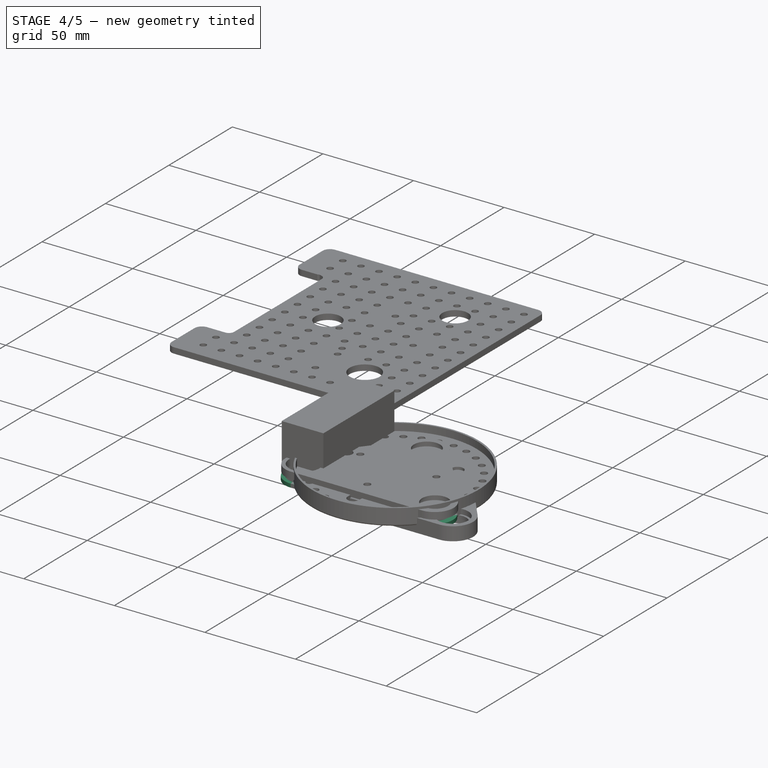
[diagram: stage 4 of 5 — iso view after this stage's code; geometry added in this stage tinted green]
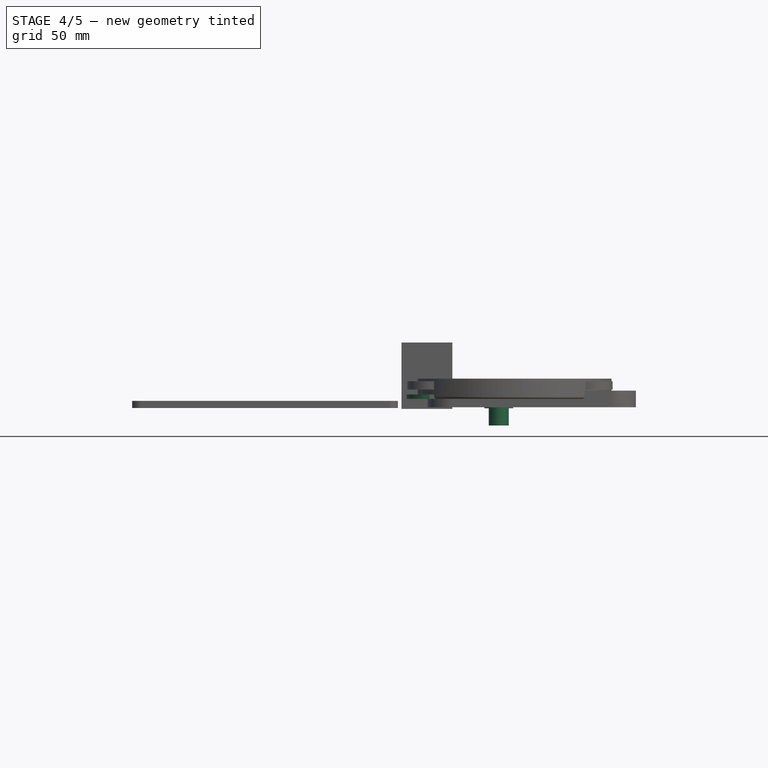
[diagram: stage 4 of 5 — front view after this stage's code; geometry added in this stage tinted green]
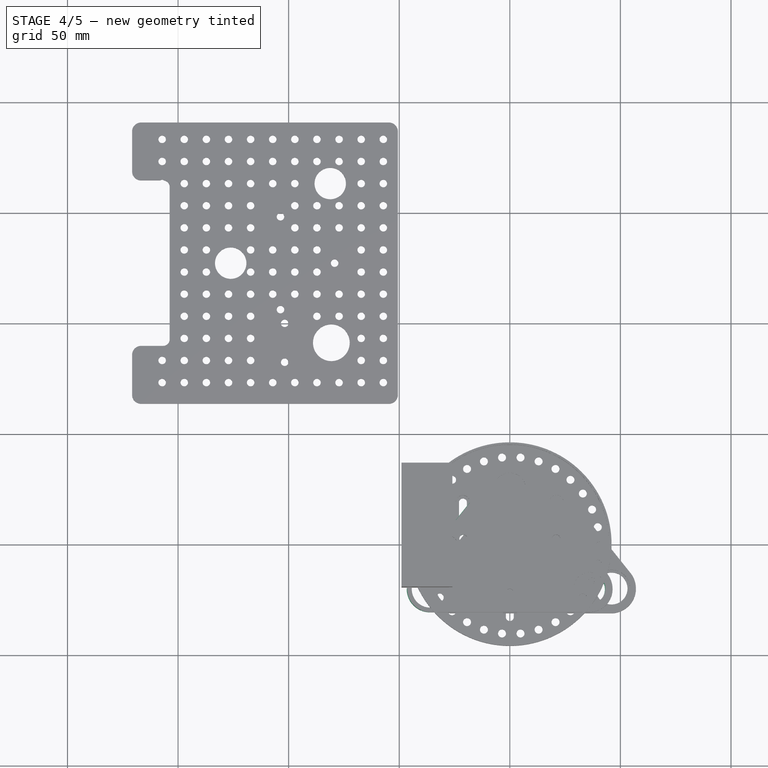
[diagram: stage 4 of 5 — top view after this stage's code; geometry added in this stage tinted green]
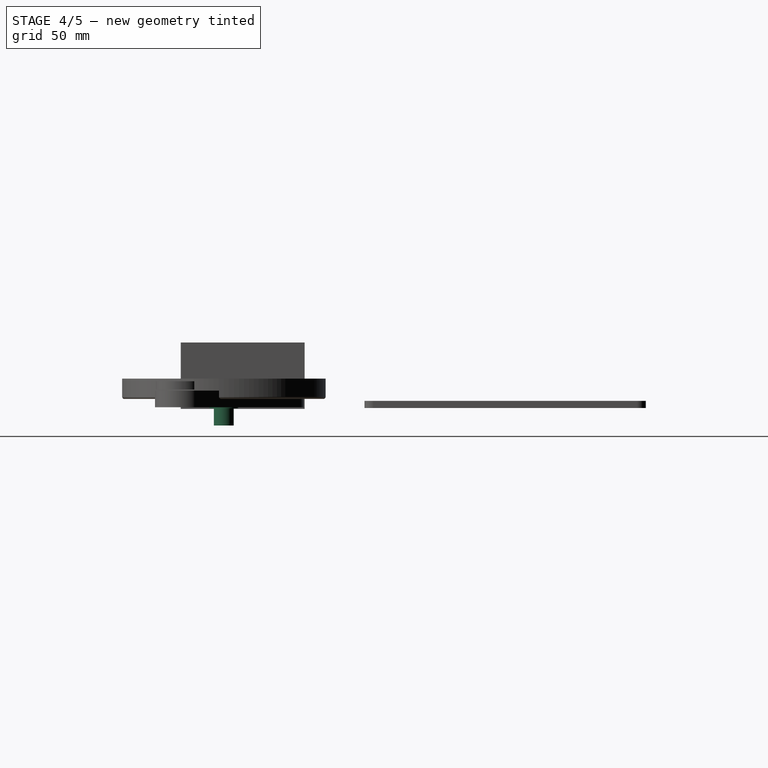
[diagram: stage 4 of 5 — right view after this stage's code; geometry added in this stage tinted green]
FEATURE [Part::Cylinder] Cylinder007
  Angle = 360
  AttacherType = Attacher::AttachEngine3D
  Height = 7.1
  Placement = pos=(5,0,0) rot=(0,0,1;0rad)
  Radius = 1.5
FEATURE [Part::Cylinder] Cylinder009
  Angle = 360
  AttacherType = Attacher::AttachEngine3D
  Height = 7.1
  Placement = pos=(-5,0,-5.1) rot=(0,0,1;0rad)
  Radius = 1.5
FEATURE [Part::Cylinder] Cylinder010
  Angle = 360
  AttacherType = Attacher::AttachEngine3D
  Height = 7.1
  Placement = pos=(-5,0,-5.1) rot=(0,0,1;0rad)
  Radius = 2.6
FEATURE [Part::MultiFuse] Fusion009  label="idle linkage hole fusion"
  Shapes = -> [Cylinder007,Cylinder009]
FEATURE [App::Part] Part001  label="idle linkage part"
  Group = -> [Cut001]
  Origin = -> Origin006
FEATURE [Sketcher::SketchObject] Sketch015
  MapMode = 5
  Support = -> [XY_Plane016]
  expr: Constraints[15] = <<p>>.bearing_external_r - <<p>>.bearing_external_wall
  expr: Constraints[16] = <<p>>.bearing_external_r + <<p>>.wall
  expr: Constraints[10] = <<p>>.bearing_external_r
  expr: Constraints[23] = <<p>>.hole_r
  sketch-geometry (13):
    g0: LineSegment StartX=-44.3349 StartY=-13.846 StartZ=0 EndX=-8.33492 EndY=31.154 EndZ=0
    g1: LineSegment StartX=7.90715 StartY=31.154 StartZ=0 EndX=43.9072 EndY=-13.846 EndZ=0
    g2: LineSegment StartX=35.7861 StartY=-30.7428 StartZ=0 EndX=-36.2139 EndY=-30.7428 EndZ=0
    g3: ArcOfCircle CenterX=-36.2139 CenterY=-20.3428 CenterZ=0 NormalX=0 NormalY=0 NormalZ=1 AngleXU=0 Radius=10.4 StartAngle=2.46685 EndAngle=4.71239
    g4: ArcOfCircle CenterX=-0.213882 CenterY=24.6572 CenterZ=0 NormalX=0 NormalY=0 NormalZ=1 AngleXU=0 Radius=10.4 StartAngle=0.674741 EndAngle=2.46685
    g5: ArcOfCircle CenterX=35.7861 CenterY=-20.3428 CenterZ=0 NormalX=0 NormalY=0 NormalZ=1 AngleXU=0 Radius=10.4 StartAngle=4.71239 EndAngle=6.95793
    g6: Circle CenterX=-36.2139 CenterY=-20.3428 CenterZ=0 NormalX=0 NormalY=0 NormalZ=1 AngleXU=0 Radius=8.4
    g7: Circle CenterX=-0.213882 CenterY=24.6572 CenterZ=0 NormalX=0 NormalY=0 NormalZ=1 AngleXU=0 Radius=7.2
    g8: Circle CenterX=35.7861 CenterY=-20.3428 CenterZ=0 NormalX=0 NormalY=0 NormalZ=1 AngleXU=0 Radius=7.2
    g9: Circle CenterX=-21.0312 CenterY=2.5 CenterZ=0 NormalX=0 NormalY=0 NormalZ=1 AngleXU=0 Radius=1.8
    g10: Circle CenterX=20.9613 CenterY=2.5 CenterZ=0 NormalX=0 NormalY=0 NormalZ=1 AngleXU=0 Radius=1.8
    g11: Circle CenterX=0 CenterY=-22 CenterZ=0 NormalX=0 NormalY=0 NormalZ=1 AngleXU=0 Radius=1.8
    g12: Circle CenterX=-27 CenterY=0.5 CenterZ=0 NormalX=0 NormalY=0 NormalZ=1 AngleXU=0 Radius=3
  constraints (29):
    c: Horizontal(g2)
    c: Tangent(g3,g2) = 1.5708
    c: Tangent(g5,g2) = 1.5708
    c: Tangent(g5,g1) = 1.5708
    c: Tangent(g4,g1) = 1.5708
    c: Tangent(g4,g0) = 1.5708
    c: Coincident(g6,g3)
    c: Coincident(g7,g4)
    c: Coincident(g8,g5)
    c: Equal(g8,g7)
    c: Radius(g6) = 8.4
    c: DistanceY(g5,g4) = 45
    c: DistanceX(g4,g5) = 36
    c: DistanceX(g3,g5) = 72
    c: DistanceY(g3,g4) = 45
    c: Radius(g8) = 7.2
    c: Radius(g4) = 10.4
    c: Equal(g3,g4)
    c: Tangent(g0,g3) = 1.5708
    c: PointOnObject(g11,g-2)
    c: DistanceY(g11,g-1) = 22
    c: DistanceY(g-1,g9) = 2.5
    c: DistanceY(g-1,g10) = 2.5
    c: Radius(g11) = 1.8
    c: Equal(g9,g10)
    c: Equal(g10,g11)
    c: Radius(g12) = 3
    c: DistanceY(g-1,g12) = 0.5
    c: DistanceX(g12,g-1) = 27
FEATURE [PartDesign::Pad] Pad014
  Direction = (1,1,1)
  Length = 2
  Length2 = 100
  Profile = -> Sketch015
  Type = 0
  expr: Length = <<p>>.bearing_cover_plate_h
FEATURE [PartDesign::Body] Body015  label="base bearing cover body"
  Group = -> [Sketch015,Pad014]
  Origin = -> Origin021
  Tip = -> Pad014
FEATURE [App::Part] Part005  label="base bearing cover"
  Group = -> [Body015]
  Origin = -> Origin020
  Placement = pos=(0,0,6) rot=(0,0,1;0rad)
FEATURE [Sketcher::SketchObject] Sketch016
  MapMode = 5
  Support = -> [XY_Plane023]
  sketch-geometry (4):
    g0: LineSegment StartX=-5 StartY=8 StartZ=0 EndX=5 EndY=8 EndZ=0
    g1: LineSegment StartX=-5 StartY=-8 StartZ=0 EndX=5 EndY=-8 EndZ=0
    g2: ArcOfCircle CenterX=-5 CenterY=9e-16 CenterZ=0 NormalX=0 NormalY=0 NormalZ=1 AngleXU=0 Radius=8 StartAngle=1.5708 EndAngle=4.71239
    g3: ArcOfCircle CenterX=5 CenterY=-3e-16 CenterZ=0 NormalX=0 NormalY=0 NormalZ=1 AngleXU=0 Radius=8 StartAngle=4.71239 EndAngle=7.85398
  constraints (9):
    c: Tangent(g2,g0) = 1.5708
    c: Tangent(g2,g1) = -1.5708
    c: Tangent(g3,g0) = 1.5708
    c: Tangent(g3,g1) = -1.5708
    c: DistanceY(g1,g0) = 16
    c: DistanceX(g2,g3) = 10
    c: Symmetric(g1,g0,g-1)
    c: Parallel(g1,g0)
    c: Symmetric(g2,g3,g-2)
FEATURE [PartDesign::Pad] Pad015
  Direction = (1,1,1)
  Length = 6
  Length2 = 100
  Profile = -> Sketch016
  Type = 0
  expr: Length = <<p>>.inserter_h
FEATURE [PartDesign::Body] Body016
  Group = -> [Sketch016,Pad015]
  Origin = -> Origin023
  Tip = -> Pad015
FEATURE [Part::Cylinder] Cylinder011  label="inserter hole"
  Angle = 360
  AttacherType = Attacher::AttachEngine3D
  Height = 10
  Placement = pos=(5,0,-2) rot=(0,0,1;0rad)
  Radius = 2.2
  expr: Radius = <<p>>.insert_hole_r
FEATURE [Part::Cylinder] Cylinder012  label="inserter hole001"
  Angle = 360
  AttacherType = Attacher::AttachEngine3D
  Height = 10
  Placement = pos=(-5,0,-2) rot=(0,0,1;0rad)
  Radius = 2.2
  expr: Radius = <<p>>.insert_hole_r
FEATURE [Part::MultiFuse] Fusion010  label="double hole fusion"
  Shapes = -> [Cylinder012,Cylinder011]
FEATURE [Part::Cylinder] Cylinder013
  Angle = 360
  AttacherType = Attacher::AttachEngine3D
  Height = 8
  Placement = pos=(5,0,0) rot=(0,0,1;0rad)
  Radius = 4.5
  expr: Height = <<p>>.inserter_h + <<p>>.washer_h
  expr: Radius = <<p>>.bearing_washer_r
FEATURE [Part::MultiFuse] Fusion011
  Shapes = -> [Cylinder013,Body016]
FEATURE [Part::Cut] Cut004  label="simple idle linkage cut"
  Base = -> Fusion011
  Tool = -> Fusion010
FEATURE [App::Part] Part006  label="simple idle linkage part"
  Group = -> [Cut004]
  Origin = -> Origin022
FEATURE [Part::Cylinder] Cylinder014
  Angle = 360
  AttacherType = Attacher::AttachEngine3D
  Height = 2
  Placement = pos=(5,0,-1) rot=(0,0,1;0rad)
  Radius = 4.5
  expr: Height = <<p>>.washer_h
  expr: Radius = <<p>>.bearing_washer_r
FEATURE [Part::Cylinder] Cylinder015
  Angle = 360
  AttacherType = Attacher::AttachEngine3D
  Height = 2
  Placement = pos=(5,0,-1) rot=(0,0,1;0rad)
  Radius = 2.2
  expr: Height = <<p>>.washer_h
  expr: Radius = <<p>>.insert_hole_r
FEATURE [Part::Cut] Cut005
  Base = -> Cylinder014
  Tool = -> Cylinder015
FEATURE [App::Part] Part007  label="linkage washer part"
  Group = -> [Cut005]
  Origin = -> Origin024
FEATURE [Sketcher::SketchObject] Sketch017
  MapMode = 5
  Support = -> [XY_Plane026]
  sketch-geometry (4):
    g0: LineSegment StartX=-5 StartY=8 StartZ=0 EndX=5 EndY=8 EndZ=0
    g1: LineSegment StartX=-5 StartY=-8 StartZ=0 EndX=5 EndY=-8 EndZ=0
    g2: ArcOfCircle CenterX=-5 CenterY=1e-15 CenterZ=0 NormalX=0 NormalY=0 NormalZ=1 AngleXU=0 Radius=8 StartAngle=1.5708 EndAngle=4.71239
    g3: ArcOfCircle CenterX=5 CenterY=-3e-16 CenterZ=0 NormalX=0 NormalY=0 NormalZ=1 AngleXU=0 Radius=8 StartAngle=4.71239 EndAngle=7.85398
  constraints (9):
    c: Tangent(g2,g0) = 1.5708
    c: Tangent(g2,g1) = -1.5708
    c: Tangent(g3,g0) = 1.5708
    c: Tangent(g3,g1) = -1.5708
    c: DistanceY(g1,g0) = 16
    c: DistanceX(g2,g3) = 10
    c: Symmetric(g1,g0,g-1)
    c: Parallel(g1,g0)
    c: Symmetric(g2,g3,g-2)
FEATURE [Sketcher::SketchObject] Sketch018
  MapMode = 5
  Support = -> [XY_Plane026]
  sketch-geometry (1):
    g0: Circle CenterX=5 CenterY=0 CenterZ=0 NormalX=0 NormalY=0 NormalZ=1 AngleXU=0 Radius=6
  constraints (3):
    c: PointOnObject(g0,g-1)
    c: Radius(g0) = 6
    c: DistanceX(g-1,g0) = 5
FEATURE [Sketcher::SketchObject] Sketch020
  MapMode = 5
  Support = -> [XY_Plane026]
  sketch-geometry (1):
    g0: Circle CenterX=-5 CenterY=0 CenterZ=0 NormalX=0 NormalY=0 NormalZ=1 AngleXU=0 Radius=4.5
  constraints (3):
    c: PointOnObject(g0,g-1)
    c: Radius(g0) = 4.5
    c: DistanceX(g0,g-1) = 5
FEATURE [Sketcher::SketchObject] Sketch021
  MapMode = 5
  Support = -> [XY_Plane026]
  sketch-geometry (1):
    g0: Circle CenterX=-5 CenterY=0 CenterZ=0 NormalX=0 NormalY=0 NormalZ=1 AngleXU=0 Radius=6.5
  constraints (3):
    c: PointOnObject(g0,g-1)
    c: DistanceX(g0,g-1) = 5
    c: Radius(g0) = 6.5
FEATURE [Sketcher::SketchObject] Sketch022
  MapMode = 5
  Support = -> [XY_Plane027]
  sketch-geometry (4):
    g0: LineSegment StartX=-7 StartY=2.23607 StartZ=0 EndX=-7 EndY=-2.23607 EndZ=0
    g1: LineSegment StartX=-3 StartY=-2.23607 StartZ=0 EndX=-3 EndY=2.23607 EndZ=0
    g2: ArcOfCircle CenterX=-5 CenterY=0 CenterZ=0 NormalX=0 NormalY=0 NormalZ=1 AngleXU=0 Radius=3 StartAngle=3.98266 EndAngle=5.44212
    g3: ArcOfCircle CenterX=-5 CenterY=0 CenterZ=0 NormalX=0 NormalY=0 NormalZ=1 AngleXU=0 Radius=3 StartAngle=0.841069 EndAngle=2.30052
  constraints (13):
    c: Vertical(g0)
    c: Vertical(g1)
    c: Coincident(g2,g0)
    c: Coincident(g2,g1)
    c: Coincident(g3,g0)
    c: Coincident(g3,g1)
    c: Coincident(g2,g3)
    c: PointOnObject(g2,g-1)
    c: DistanceX(g2,g-1) = 5
    c: DistanceX(g0,g1) = 4
    c: Radius(g3) = 3
    c: Equal(g2,g3)
    c: Equal(g0,g1)
FEATURE [PartDesign::Pad] Pad016
  Direction = (1,1,1)
  Length = 5
  Length2 = 100
  Profile = -> Sketch018
  Type = 0
FEATURE [PartDesign::Pad] Pad018
  BaseFeature = -> Pad016
  Direction = (1,1,1)
  Length = 12
  Length2 = 100
  Profile = -> Sketch020
  Reversed = true
  Type = 0
FEATURE [PartDesign::Pad] Pad019
  BaseFeature = -> Pad018
  Direction = (1,1,1)
  Length = 4.2
  Length2 = 100
  Profile = -> Sketch021
  Reversed = true
  Type = 0
FEATURE [PartDesign::Body] Body018  label="motor linkage hole body001"
  Group = -> [Sketch022,Pad020]
  Origin = -> Origin027
  Tip = -> Pad020
FEATURE [PartDesign::Pad] Pad021
  BaseFeature = -> Pad019
  Direction = (1,1,1)
  Length = 6
  Length2 = 100
  Profile = -> Sketch017
  Type = 0
  expr: Length = <<p>>.inserter_h
FEATURE [PartDesign::Body] Body019  label="central hole body001"
  Group = -> [Sketch023,Pad022]
  Origin = -> Origin028
  Tip = -> Pad022
FEATURE [Part::MultiFuse] Fusion012  label="hole fusion001"
  Shapes = -> [Body019,Body018]
FEATURE [Part::Cut] Cut006  label="motor linkage cut001"
  Base = -> Body017
  Tool = -> Fusion012
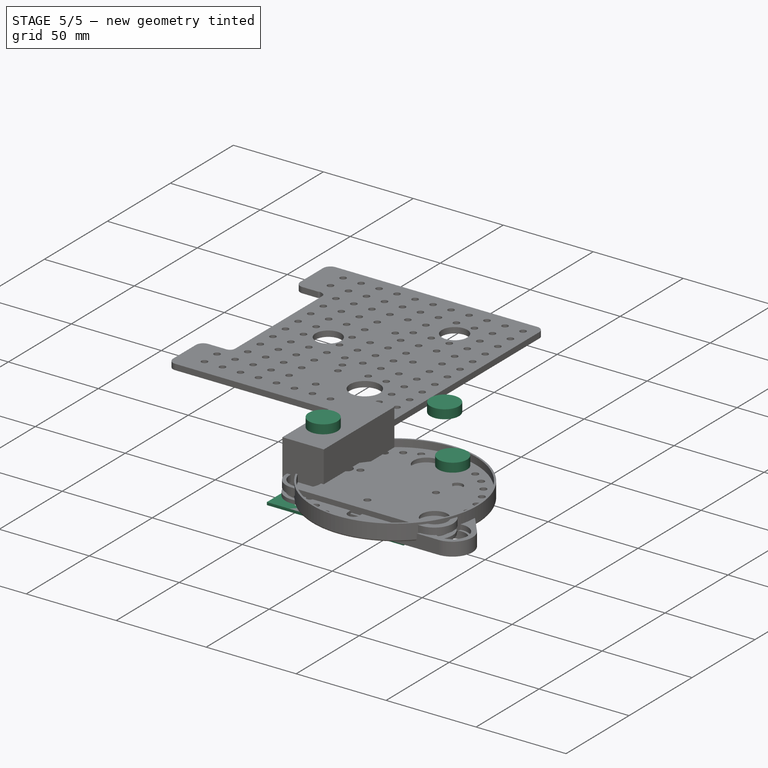
[diagram: stage 5 of 5 — iso view after this stage's code; geometry added in this stage tinted green]
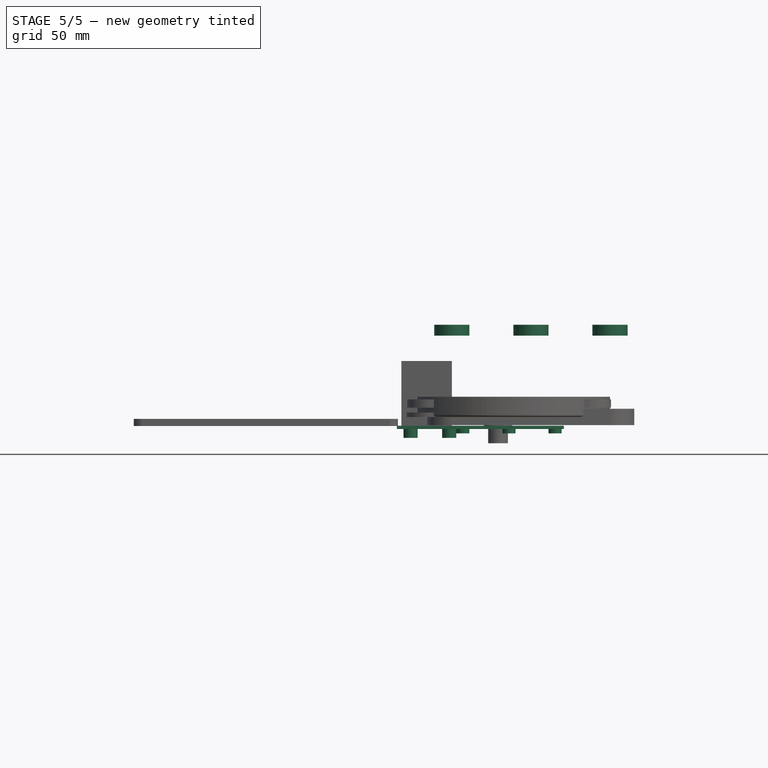
[diagram: stage 5 of 5 — front view after this stage's code; geometry added in this stage tinted green]
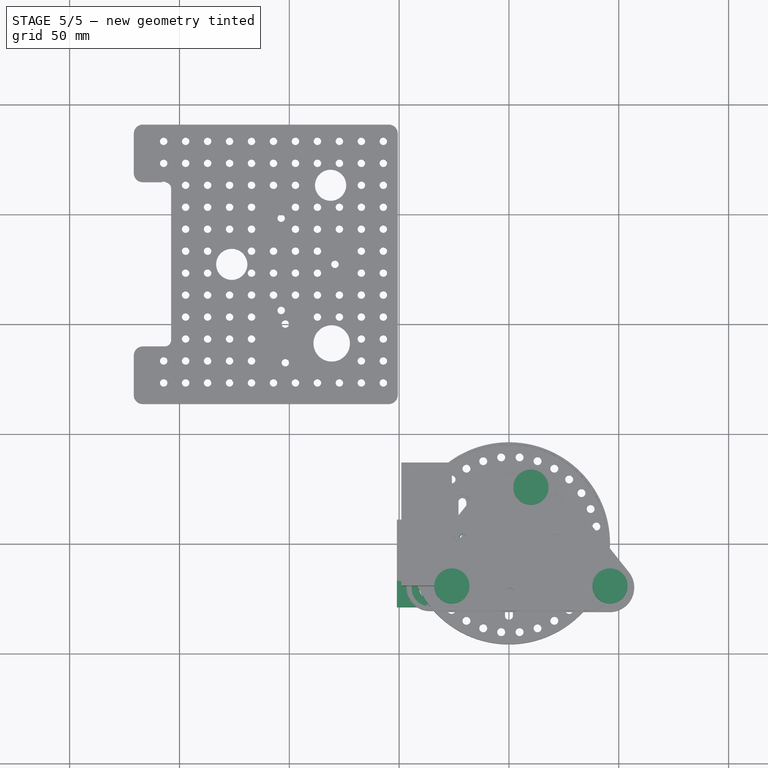
[diagram: stage 5 of 5 — top view after this stage's code; geometry added in this stage tinted green]
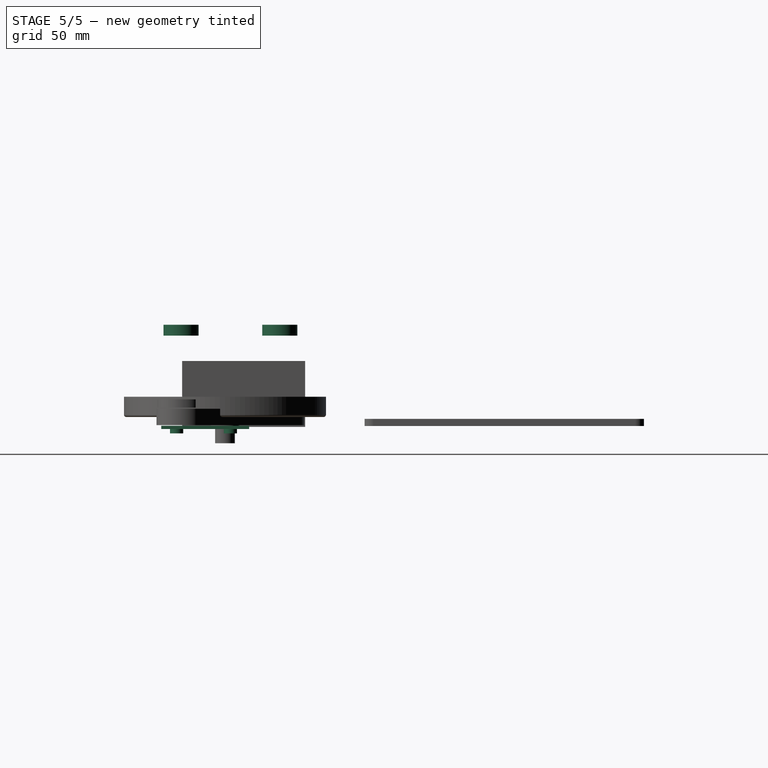
[diagram: stage 5 of 5 — right view after this stage's code; geometry added in this stage tinted green]
FEATURE [Sketcher::SketchObject] Sketch001
  MapMode = 5
  Support = -> [XY_Plane002]
  sketch-geometry (4):
    g0: LineSegment StartX=-5 StartY=8 StartZ=0 EndX=5 EndY=8 EndZ=0
    g1: LineSegment StartX=-5 StartY=-8 StartZ=0 EndX=5 EndY=-8 EndZ=0
    g2: ArcOfCircle CenterX=-5 CenterY=1e-15 CenterZ=0 NormalX=0 NormalY=0 NormalZ=1 AngleXU=0 Radius=8 StartAngle=1.5708 EndAngle=4.71239
    g3: ArcOfCircle CenterX=5 CenterY=-3e-16 CenterZ=0 NormalX=0 NormalY=0 NormalZ=1 AngleXU=0 Radius=8 StartAngle=4.71239 EndAngle=7.85398
  constraints (9):
    c: Tangent(g2,g0) = 1.5708
    c: Tangent(g2,g1) = -1.5708
    c: Tangent(g3,g0) = 1.5708
    c: Tangent(g3,g1) = -1.5708
    c: DistanceY(g1,g0) = 16
    c: DistanceX(g2,g3) = 10
    c: Symmetric(g1,g0,g-1)
    c: Parallel(g1,g0)
    c: Symmetric(g2,g3,g-2)
FEATURE [Sketcher::SketchObject] Sketch002
  MapMode = 5
  Support = -> [XY_Plane002]
  sketch-geometry (1):
    g0: Circle CenterX=5 CenterY=0 CenterZ=0 NormalX=0 NormalY=0 NormalZ=1 AngleXU=0 Radius=6
  constraints (3):
    c: PointOnObject(g0,g-1)
    c: Radius(g0) = 6
    c: DistanceX(g-1,g0) = 5
FEATURE [Sketcher::SketchObject] Sketch003
  MapMode = 5
  Support = -> [XY_Plane002]
  sketch-geometry (1):
    g0: Circle CenterX=5 CenterY=0 CenterZ=0 NormalX=0 NormalY=0 NormalZ=1 AngleXU=0 Radius=2.6
  constraints (3):
    c: PointOnObject(g0,g-1)
    c: Radius(g0) = 2.6
    c: DistanceX(g-1,g0) = 5
FEATURE [Sketcher::SketchObject] Sketch004
  MapMode = 5
  Support = -> [XY_Plane002]
  sketch-geometry (1):
    g0: Circle CenterX=-5 CenterY=0 CenterZ=0 NormalX=0 NormalY=0 NormalZ=1 AngleXU=0 Radius=4.5
  constraints (3):
    c: PointOnObject(g0,g-1)
    c: Radius(g0) = 4.5
    c: DistanceX(g0,g-1) = 5
FEATURE [Sketcher::SketchObject] Sketch005
  MapMode = 5
  Support = -> [XY_Plane002]
  sketch-geometry (1):
    g0: Circle CenterX=-5 CenterY=0 CenterZ=0 NormalX=0 NormalY=0 NormalZ=1 AngleXU=0 Radius=6.5
  constraints (3):
    c: PointOnObject(g0,g-1)
    c: DistanceX(g0,g-1) = 5
    c: Radius(g0) = 6.5
FEATURE [Sketcher::SketchObject] Sketch006
  MapMode = 5
  Support = -> [XY_Plane003]
  sketch-geometry (4):
    g0: LineSegment StartX=-7 StartY=2.23607 StartZ=0 EndX=-7 EndY=-2.23607 EndZ=0
    g1: LineSegment StartX=-3 StartY=-2.23607 StartZ=0 EndX=-3 EndY=2.23607 EndZ=0
    g2: ArcOfCircle CenterX=-5 CenterY=0 CenterZ=0 NormalX=0 NormalY=0 NormalZ=1 AngleXU=0 Radius=3 StartAngle=3.98266 EndAngle=5.44212
    g3: ArcOfCircle CenterX=-5 CenterY=0 CenterZ=0 NormalX=0 NormalY=0 NormalZ=1 AngleXU=0 Radius=3 StartAngle=0.841069 EndAngle=2.30052
  constraints (13):
    c: Vertical(g0)
    c: Vertical(g1)
    c: Coincident(g2,g0)
    c: Coincident(g2,g1)
    c: Coincident(g3,g0)
    c: Coincident(g3,g1)
    c: Coincident(g2,g3)
    c: PointOnObject(g2,g-1)
    c: DistanceX(g2,g-1) = 5
    c: DistanceX(g0,g1) = 4
    c: Radius(g3) = 3
    c: Equal(g2,g3)
    c: Equal(g0,g1)
FEATURE [PartDesign::Pad] Pad001
  Direction = (1,1,1)
  Length = 2.6
  Length2 = 100
  Profile = -> Sketch002
  Type = 0
FEATURE [PartDesign::Pad] Pad002
  BaseFeature = -> Pad001
  Direction = (1,1,1)
  Length = 7.1
  Length2 = 100
  Profile = -> Sketch003
  Type = 0
FEATURE [PartDesign::Pad] Pad003
  BaseFeature = -> Pad002
  Direction = (1,1,1)
  Length = 10
  Length2 = 100
  Profile = -> Sketch004
  Reversed = true
  Type = 0
FEATURE [PartDesign::Pad] Pad004
  BaseFeature = -> Pad003
  Direction = (1,1,1)
  Length = 4.2
  Length2 = 100
  Profile = -> Sketch005
  Reversed = true
  Type = 0
FEATURE [PartDesign::Pad] Pad005
  Direction = (1,1,1)
  Length = 10
  Length2 = 100
  Profile = -> Sketch006
  Reversed = true
  Type = 0
FEATURE [PartDesign::Body] Body002  label="motor linkage hole body"
  Group = -> [Sketch006,Pad005]
  Origin = -> Origin003
  Tip = -> Pad005
FEATURE [PartDesign::ShapeBinder] ShapeBinder004
  Placement = pos=(31,20,0) rot=(0,0,1;0rad)
  TraceSupport = false
FEATURE [PartDesign::Pad] Pad006
  BaseFeature = -> Pad004
  Direction = (1,1,1)
  Length = 2
  Length2 = 100
  Profile = -> Sketch001
  Type = 0
FEATURE [PartDesign::Body] Body001  label="motor linkage body"
  Group = -> [Sketch001,Sketch002,Sketch003,Sketch004,Sketch005,Pad001,Pad002,Pad003,Pad004,ShapeBinder004,Pad006]
  Origin = -> Origin002
  Tip = -> Pad006
FEATURE [Sketcher::SketchObject] Sketch008
  MapMode = 5
  Support = -> [XY_Plane005]
  sketch-geometry (4):
    g0: LineSegment StartX=-5 StartY=8 StartZ=0 EndX=5 EndY=8 EndZ=0
    g1: LineSegment StartX=-5 StartY=-8 StartZ=0 EndX=5 EndY=-8 EndZ=0
    g2: ArcOfCircle CenterX=-5 CenterY=9e-16 CenterZ=0 NormalX=0 NormalY=0 NormalZ=1 AngleXU=0 Radius=8 StartAngle=1.5708 EndAngle=4.71239
    g3: ArcOfCircle CenterX=5 CenterY=-3e-16 CenterZ=0 NormalX=0 NormalY=0 NormalZ=1 AngleXU=0 Radius=8 StartAngle=4.71239 EndAngle=7.85398
  constraints (9):
    c: Tangent(g2,g0) = 1.5708
    c: Tangent(g2,g1) = -1.5708
    c: Tangent(g3,g0) = 1.5708
    c: Tangent(g3,g1) = -1.5708
    c: DistanceY(g1,g0) = 16
    c: DistanceX(g2,g3) = 10
    c: Symmetric(g1,g0,g-1)
    c: Parallel(g1,g0)
    c: Symmetric(g2,g3,g-2)
FEATURE [PartDesign::Pad] Pad
  Direction = (1,1,1)
  Length = 2
  Length2 = 100
  Profile = -> Sketch008
  Type = 0
FEATURE [PartDesign::Body] Body004  label="idle linkage base body"
  Group = -> [Sketch008,Pad]
  Origin = -> Origin005
  Tip = -> Pad
FEATURE [Part::Box] Box
  AttacherType = Attacher::AttachEngine3D
  Height = 50
  Length = 76
  Placement = pos=(-51,-29,0) rot=(0,0,1;0rad)
  Width = 40
FEATURE [Part::Feature] shaker_upper002_solid  label="shaker_upper002 (Solid)"
  shape: bbox 121 x 94 x 31.5 mm, 8200 faces (baked)
FEATURE [Part::MultiCommon] Common  label="top test"
  Placement = pos=(0,0,-32.5) rot=(0,0,1;0rad)
  Shapes = -> [Box,shaker_upper002_solid]
FEATURE [Part::Cylinder] Cylinder  label="bearing mockup"
  Angle = 360
  AttacherType = Attacher::AttachEngine3D
  Height = 5
  Placement = pos=(10,25,37) rot=(0,0,1;0rad)
  Radius = 8
FEATURE [PartDesign::FeatureBase] Clone
  BaseFeature = -> Cylinder
  Placement = pos=(10,25,37) rot=(0,0,1;0rad)
FEATURE [PartDesign::Body] Body006  label="bearing mockup clone"
  BaseFeature = -> Cylinder
  Group = -> [Clone]
  Origin = -> Origin008
  Placement = pos=(-36,-45,0) rot=(0,0,1;0rad)
  Tip = -> Clone
FEATURE [PartDesign::FeatureBase] Clone001
  BaseFeature = -> Cylinder
  Placement = pos=(10,25,37) rot=(0,0,1;0rad)
FEATURE [PartDesign::Body] Body007  label="bearing mockup clone001"
  BaseFeature = -> Cylinder
  Group = -> [Clone001]
  Origin = -> Origin009
  Placement = pos=(36,-45,0) rot=(0,0,1;0rad)
  Tip = -> Clone001
FEATURE [Part::MultiFuse] Fusion  label="bearing mockup fusion"
  Shapes = -> [Cylinder,Body006,Body007]
FEATURE [App::Part] Part004  label="base bearing part"
  Group = -> [Fusion004]
  Origin = -> Origin
FEATURE [Sketcher::SketchObject] Sketch014
  MapMode = 5
  Support = -> [XY_Plane019]
  sketch-geometry (1):
    g0: Circle CenterX=5.02065 CenterY=0 CenterZ=0 NormalX=0 NormalY=0 NormalZ=1 AngleXU=0 Radius=1.5
  constraints (2):
    c: PointOnObject(g0,g-1)
    c: Radius(g0) = 1.5
FEATURE [PartDesign::Pad] Pad013
  Direction = (1,1,1)
  Length = 20
  Length2 = 100
  Midplane = true
  Profile = -> Sketch014
  Type = 0
FEATURE [PartDesign::Body] Body014  label="central hole body"
  Group = -> [Sketch014,Pad013]
  Origin = -> Origin019
  Tip = -> Pad013
FEATURE [Part::MultiFuse] Fusion005  label="hole fusion"
  Shapes = -> [Body014,Body002]
FEATURE [Part::Cut] Cut  label="motor linkage cut"
  Base = -> Body001
  Tool = -> Fusion005
FEATURE [App::Part] Part  label="motor linkage part"
  Group = -> [Cut]
  Origin = -> Origin001
FEATURE [Part::Cylinder] Cylinder005  label="Cylinder"
  Angle = 360
  AttacherType = Attacher::AttachEngine3D
  Height = 2.6
  Placement = pos=(5,0,0) rot=(0,0,1;0rad)
  Radius = 6
FEATURE [Part::Cylinder] Cylinder006
  Angle = 360
  AttacherType = Attacher::AttachEngine3D
  Height = 2.6
  Placement = pos=(-5,0,-0.6) rot=(0,0,1;0rad)
  Radius = 6
FEATURE [Part::Cylinder] Cylinder008
  Angle = 360
  AttacherType = Attacher::AttachEngine3D
  Height = 7.1
  Placement = pos=(5,0,0) rot=(0,0,1;0rad)
  Radius = 2.6
FEATURE [Part::MultiFuse] Fusion008  label="idle linkage fusion"
  Shapes = -> [Cylinder005,Cylinder006,Cylinder008,Cylinder010,Body004]
FEATURE [Part::Cut] Cut001  label="idle fusion cut"
  Base = -> Fusion008
  Tool = -> Fusion009
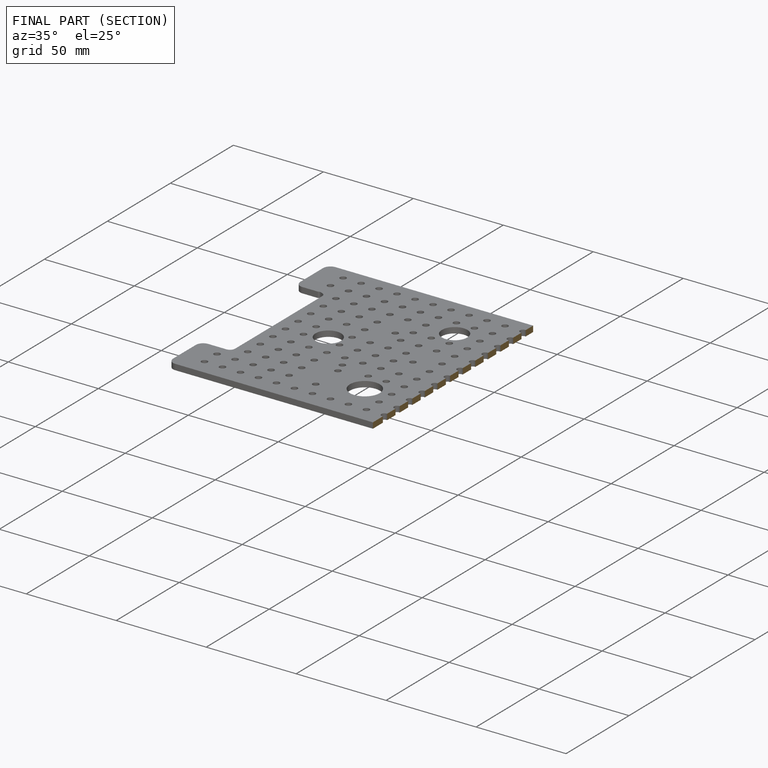
[diagram: finished part — half-section view (interior)]
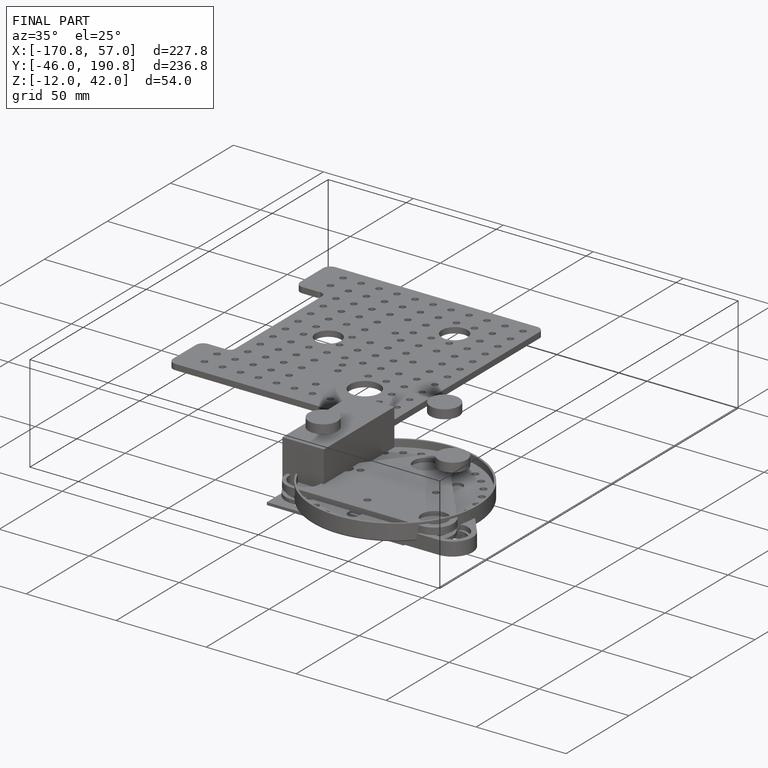
[diagram: finished part — iso view with bounding-box wireframe]
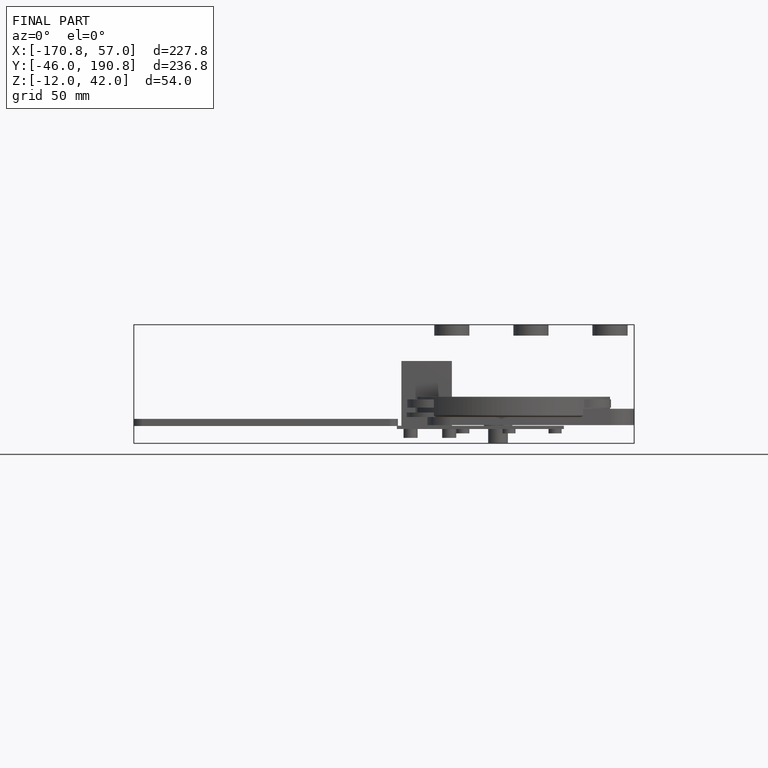
[diagram: finished part — front view with bounding-box wireframe]
